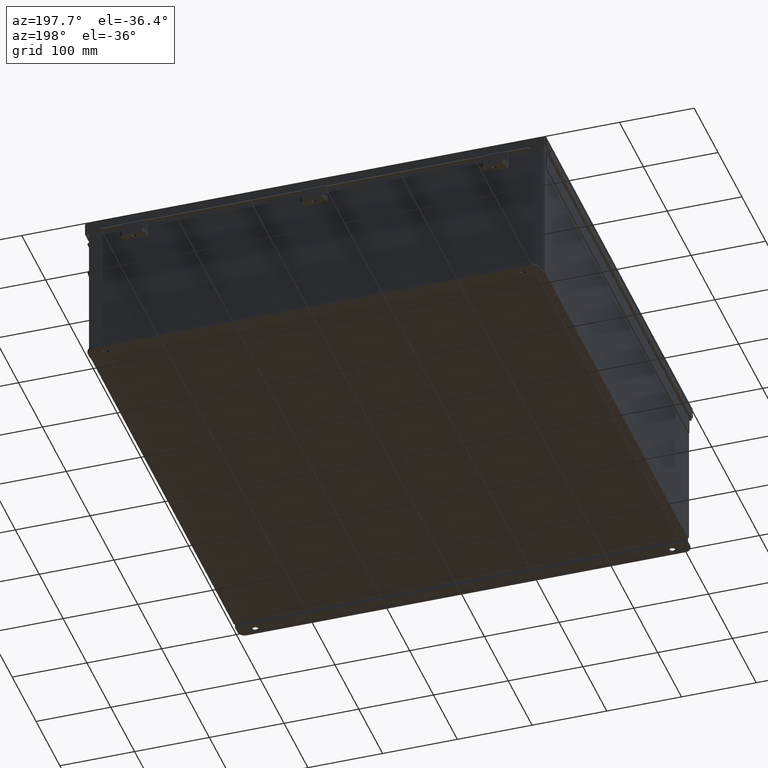
[diagram: clean part render]
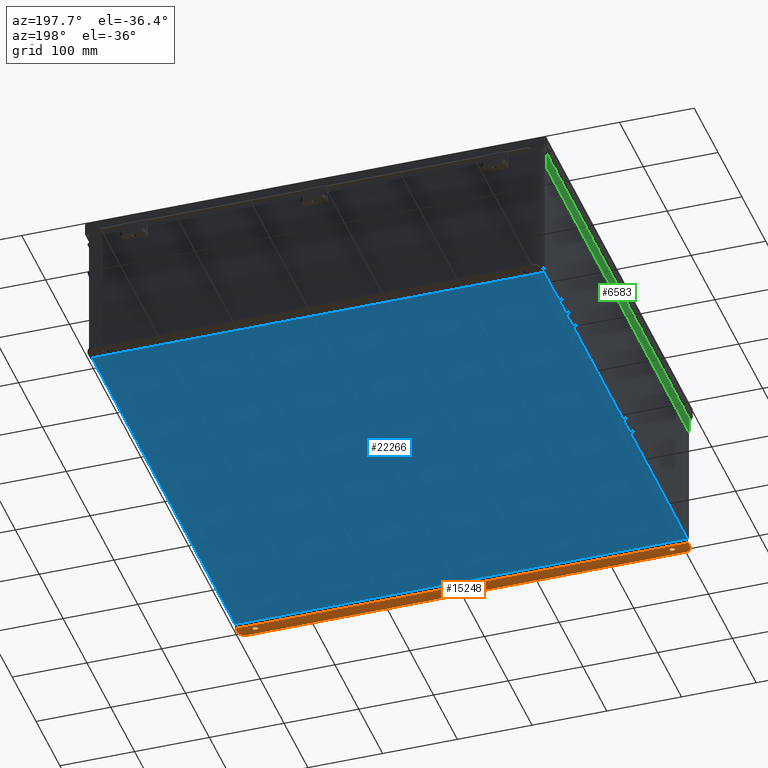
[diagram: same view with three faces highlighted in distinct colors, each labeled with its STEP entity id]
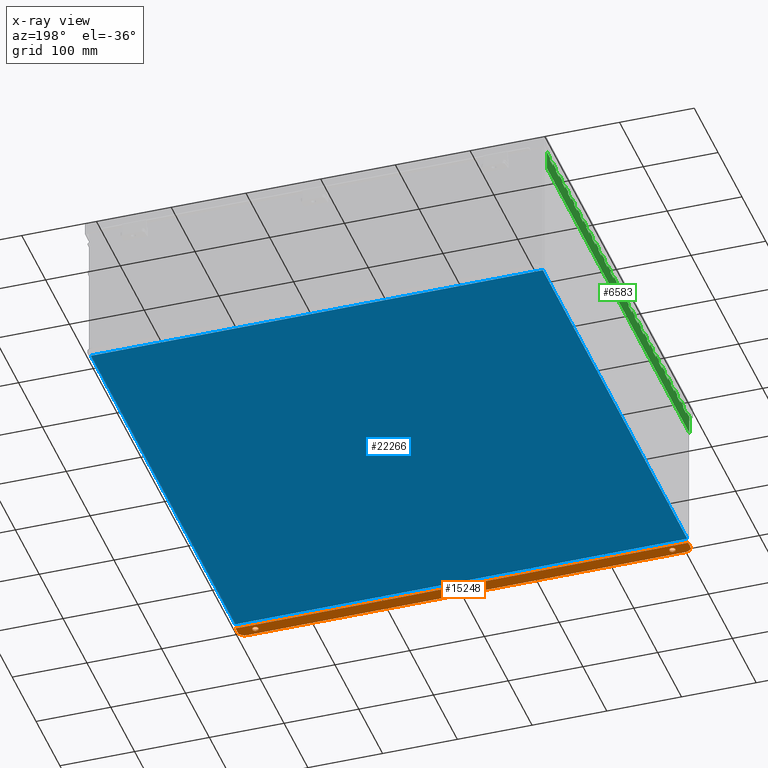
[diagram: x-ray of the same camera — body ghosted, the three highlighted faces saturated]
A machine part, auxiliary view with three faces highlighted in distinct colors.
The next image is the same camera in x-ray (body ghosted, the three faces saturated) — at least one of them is partly hidden behind the body in this view.
Their STEP definitions:

[orange] entity #15248 — the highlighted planar face has unit normal (0, -0, 1).
#114 = CARTESIAN_POINT ( 'NONE',  ( -11.92529999999999800, 0.01300000000000010700, -4.186999999999995800 ) ) ;
#421 = ORIENTED_EDGE ( 'NONE', *, *, #21510, .F. ) ;
#647 = DIRECTION ( 'NONE',  ( 0.0000000000000000000, -1.000000000000000000, 4.370956789862820400E-015 ) ) ;
#656 = CARTESIAN_POINT ( 'NONE',  ( 11.92530000000000000, 0.01300000000001759100, -4.187000000000000300 ) ) ;
#676 = DIRECTION ( 'NONE',  ( -0.0000000000000000000, -3.702694488566362300E-015, -1.000000000000000000 ) ) ;
#701 = CARTESIAN_POINT ( 'NONE',  ( -11.55029999999997900, 0.3627999999999986800, -4.186999999999996700 ) ) ;
#1108 = EDGE_LOOP ( 'NONE', ( #16764, #421 ) ) ;
#1353 = EDGE_CURVE ( 'NONE', #7873, #4765, #23464, .T. ) ;
#1584 = EDGE_CURVE ( 'NONE', #4671, #16002, #17282, .T. ) ;
#1685 = DIRECTION ( 'NONE',  ( -4.919856193148104900E-031, -1.000000000000000000, 3.702694488566362300E-015 ) ) ;
#1810 = AXIS2_PLACEMENT_3D ( 'NONE', #2595, #15637, #11939 ) ;
#1956 = EDGE_LOOP ( 'NONE', ( #16907, #6255, #20457, #21103, #11509, #23284 ) ) ;
#2152 = VECTOR ( 'NONE', #11127, 39.37007874015748100 ) ;
#2223 = LINE ( 'NONE', #11284, #2152 ) ;
#2419 = CARTESIAN_POINT ( 'NONE',  ( -11.92529999999998400, 0.3627999999999986800, -4.187000000000001200 ) ) ;
#2595 = CARTESIAN_POINT ( 'NONE',  ( -10.98779999999998000, 0.3627999999999986800, -4.187000000000001200 ) ) ;
#4068 = VERTEX_POINT ( 'NONE', #15369 ) ;
#4203 = AXIS2_PLACEMENT_3D ( 'NONE', #701, #676, #647 ) ;
#4671 = VERTEX_POINT ( 'NONE', #22788 ) ;
#4765 = VERTEX_POINT ( 'NONE', #6562 ) ;
#5235 = EDGE_CURVE ( 'NONE', #10815, #24901, #15497, .T. ) ;
#5363 = VERTEX_POINT ( 'NONE', #7698 ) ;
#5464 = EDGE_CURVE ( 'NONE', #21276, #5363, #14630, .T. ) ;
#6255 = ORIENTED_EDGE ( 'NONE', *, *, #19924, .T. ) ;
#6389 = CARTESIAN_POINT ( 'NONE',  ( 10.98780000000001800, 0.5188000000000162500, -4.186999999999996700 ) ) ;
#6562 = CARTESIAN_POINT ( 'NONE',  ( 11.55030000000001800, 0.7378000000000163300, -4.186999999999998500 ) ) ;
#6934 = EDGE_CURVE ( 'NONE', #4765, #4671, #8681, .T. ) ;
#7471 = CARTESIAN_POINT ( 'NONE',  ( -11.92530000000000000, -1.529834876451987200E-014, -4.186999999999995800 ) ) ;
#7698 = CARTESIAN_POINT ( 'NONE',  ( -10.98779999999998000, 0.5187999999999987100, -4.187000000000001200 ) ) ;
#7873 = VERTEX_POINT ( 'NONE', #20175 ) ;
#8182 = VERTEX_POINT ( 'NONE', #6389 ) ;
#8681 = CIRCLE ( 'NONE', #17228, 0.3750000000000000600 ) ;
#8685 = DIRECTION ( 'NONE',  ( 0.0000000000000000000, 1.000000000000000000, -3.502369222646490200E-015 ) ) ;
#8719 = DIRECTION ( 'NONE',  ( 0.0000000000000000000, -3.362274453740631800E-015, -1.000000000000000000 ) ) ;
#8736 = AXIS2_PLACEMENT_3D ( 'NONE', #18550, #17832, #16615 ) ;
#8759 = CARTESIAN_POINT ( 'NONE',  ( 10.98780000000001800, 0.3628000000000161700, -4.186999999999996700 ) ) ;
#9615 = DIRECTION ( 'NONE',  ( 1.000000000000000000, 4.910036603141682400E-031, 0.0000000000000000000 ) ) ;
#10059 = DIRECTION ( 'NONE',  ( -4.919856193148104900E-031, -1.000000000000000000, 3.702694488566362300E-015 ) ) ;
#10155 = AXIS2_PLACEMENT_3D ( 'NONE', #8759, #8719, #8685 ) ;
#10666 = AXIS2_PLACEMENT_3D ( 'NONE', #16556, #16520, #16490 ) ;
#10726 = PLANE ( 'NONE',  #17238 ) ;
#10815 = VERTEX_POINT ( 'NONE', #114 ) ;
#11127 = DIRECTION ( 'NONE',  ( 1.000000000000000000, 2.290800226127906500E-017, -0.0000000000000000000 ) ) ;
#11284 = CARTESIAN_POINT ( 'NONE',  ( 11.92530000000000000, 0.01300000000001759100, -4.187000000000000300 ) ) ;
#11330 = CIRCLE ( 'NONE', #4203, 0.3750000000000000600 ) ;
#11478 = CARTESIAN_POINT ( 'NONE',  ( -2.035385365534024800E-024, -1.529834876451987200E-014, -4.187000000000000300 ) ) ;
#11509 = ORIENTED_EDGE ( 'NONE', *, *, #1584, .T. ) ;
#11939 = DIRECTION ( 'NONE',  ( 0.0000000000000000000, 1.000000000000000000, -3.502369222646490200E-015 ) ) ;
#12878 = CARTESIAN_POINT ( 'NONE',  ( 11.92530000000000000, 2.185478394931410600E-015, -4.187000000000000300 ) ) ;
#13030 = CARTESIAN_POINT ( 'NONE',  ( -2.035385365534024800E-024, 0.7378000000000011200, -4.186999999999998500 ) ) ;
#14184 = DIRECTION ( 'NONE',  ( 0.0000000000000000000, 3.702694488566362300E-015, 1.000000000000000000 ) ) ;
#14270 = EDGE_CURVE ( 'NONE', #10815, #16002, #2223, .T. ) ;
#14630 = CIRCLE ( 'NONE', #1810, 0.1560000000000000600 ) ;
#15248 = ADVANCED_FACE ( 'NONE', ( #19452, #19363, #19656 ), #10726, .F. ) ;
#15369 = CARTESIAN_POINT ( 'NONE',  ( 10.98780000000001800, 0.2068000000000160800, -4.186999999999995800 ) ) ;
#15497 = LINE ( 'NONE', #7471, #15587 ) ;
#15587 = VECTOR ( 'NONE', #16709, 39.37007874015748100 ) ;
#15637 = DIRECTION ( 'NONE',  ( 0.0000000000000000000, -3.362274453740631800E-015, -1.000000000000000000 ) ) ;
#15669 = DIRECTION ( 'NONE',  ( -0.0000000000000000000, -3.702694488566362300E-015, -1.000000000000000000 ) ) ;
#16002 = VERTEX_POINT ( 'NONE', #656 ) ;
#16490 = DIRECTION ( 'NONE',  ( 0.0000000000000000000, 1.000000000000000000, -3.502369222646490200E-015 ) ) ;
#16520 = DIRECTION ( 'NONE',  ( 0.0000000000000000000, -3.362274453740631800E-015, -1.000000000000000000 ) ) ;
#16556 = CARTESIAN_POINT ( 'NONE',  ( -10.98779999999998000, 0.3627999999999986800, -4.187000000000001200 ) ) ;
#16615 = DIRECTION ( 'NONE',  ( 0.0000000000000000000, 1.000000000000000000, -3.502369222646490200E-015 ) ) ;
#16709 = DIRECTION ( 'NONE',  ( 4.919856193148104900E-031, 1.000000000000000000, -3.702694488566362300E-015 ) ) ;
#16741 = CIRCLE ( 'NONE', #10666, 0.1560000000000000600 ) ;
#16764 = ORIENTED_EDGE ( 'NONE', *, *, #17981, .F. ) ;
#16907 = ORIENTED_EDGE ( 'NONE', *, *, #5235, .T. ) ;
#16972 = VECTOR ( 'NONE', #1685, 39.37007874015748100 ) ;
#17228 = AXIS2_PLACEMENT_3D ( 'NONE', #18686, #15669, #24744 ) ;
#17238 = AXIS2_PLACEMENT_3D ( 'NONE', #11478, #14184, #10059 ) ;
#17282 = LINE ( 'NONE', #12878, #16972 ) ;
#17642 = CARTESIAN_POINT ( 'NONE',  ( -10.98779999999998000, 0.2067999999999986000, -4.187000000000000300 ) ) ;
#17832 = DIRECTION ( 'NONE',  ( 0.0000000000000000000, -3.362274453740631800E-015, -1.000000000000000000 ) ) ;
#17981 = EDGE_CURVE ( 'NONE', #8182, #4068, #23703, .T. ) ;
#18550 = CARTESIAN_POINT ( 'NONE',  ( 10.98780000000001800, 0.3628000000000161700, -4.186999999999996700 ) ) ;
#18686 = CARTESIAN_POINT ( 'NONE',  ( 11.55030000000001800, 0.3628000000000161700, -4.187000000000001200 ) ) ;
#19357 = ORIENTED_EDGE ( 'NONE', *, *, #23500, .F. ) ;
#19363 = FACE_BOUND ( 'NONE', #1108, .T. ) ;
#19452 = FACE_BOUND ( 'NONE', #21413, .T. ) ;
#19656 = FACE_OUTER_BOUND ( 'NONE', #1956, .T. ) ;
#19924 = EDGE_CURVE ( 'NONE', #24901, #7873, #11330, .T. ) ;
#20175 = CARTESIAN_POINT ( 'NONE',  ( -11.55029999999997900, 0.7377999999999989000, -4.187000000000002900 ) ) ;
#20457 = ORIENTED_EDGE ( 'NONE', *, *, #1353, .T. ) ;
#21103 = ORIENTED_EDGE ( 'NONE', *, *, #6934, .T. ) ;
#21276 = VERTEX_POINT ( 'NONE', #17642 ) ;
#21413 = EDGE_LOOP ( 'NONE', ( #19357, #23965 ) ) ;
#21510 = EDGE_CURVE ( 'NONE', #4068, #8182, #24447, .T. ) ;
#22786 = VECTOR ( 'NONE', #9615, 39.37007874015748100 ) ;
#22788 = CARTESIAN_POINT ( 'NONE',  ( 11.92530000000001800, 0.3628000000000161700, -4.186999999999996700 ) ) ;
#23284 = ORIENTED_EDGE ( 'NONE', *, *, #14270, .F. ) ;
#23464 = LINE ( 'NONE', #13030, #22786 ) ;
#23500 = EDGE_CURVE ( 'NONE', #5363, #21276, #16741, .T. ) ;
#23703 = CIRCLE ( 'NONE', #8736, 0.1560000000000000600 ) ;
#23965 = ORIENTED_EDGE ( 'NONE', *, *, #5464, .F. ) ;
#24447 = CIRCLE ( 'NONE', #10155, 0.1560000000000000600 ) ;
#24744 = DIRECTION ( 'NONE',  ( 0.0000000000000000000, -1.000000000000000000, 4.370956789862820400E-015 ) ) ;
#24901 = VERTEX_POINT ( 'NONE', #2419 ) ;

[blue] entity #22266 — the highlighted planar face has unit normal (0, 0, -1).
#2713 = CARTESIAN_POINT ( 'NONE',  ( 11.91230000000000000, 11.92529999999999800, -0.07469999999999994700 ) ) ;
#3737 = AXIS2_PLACEMENT_3D ( 'NONE', #16034, #15511, #15406 ) ;
#4070 = EDGE_CURVE ( 'NONE', #13842, #8018, #20523, .T. ) ;
#5085 = CARTESIAN_POINT ( 'NONE',  ( -11.91230000000000000, -11.92529999999999800, -0.07469999999999994700 ) ) ;
#5570 = VERTEX_POINT ( 'NONE', #7185 ) ;
#7185 = CARTESIAN_POINT ( 'NONE',  ( -11.91230000000000000, 11.92530000000000000, -0.07470000000000000300 ) ) ;
#8018 = VERTEX_POINT ( 'NONE', #15510 ) ;
#8588 = VECTOR ( 'NONE', #10262, 39.37007874015748100 ) ;
#8886 = LINE ( 'NONE', #10239, #8588 ) ;
#10239 = CARTESIAN_POINT ( 'NONE',  ( -11.91230000000000000, -11.92530000000000000, -0.07469999999999994700 ) ) ;
#10262 = DIRECTION ( 'NONE',  ( -0.0000000000000000000, 1.000000000000000000, -0.0000000000000000000 ) ) ;
#11762 = CARTESIAN_POINT ( 'NONE',  ( -12.00000000000000200, -11.92530000000000000, -0.07470000000000000300 ) ) ;
#11768 = ORIENTED_EDGE ( 'NONE', *, *, #13060, .T. ) ;
#13060 = EDGE_CURVE ( 'NONE', #13842, #5570, #8886, .T. ) ;
#13561 = ORIENTED_EDGE ( 'NONE', *, *, #4070, .F. ) ;
#13842 = VERTEX_POINT ( 'NONE', #5085 ) ;
#13889 = ORIENTED_EDGE ( 'NONE', *, *, #15496, .T. ) ;
#15406 = DIRECTION ( 'NONE',  ( -1.000000000000000000, 0.0000000000000000000, -0.0000000000000000000 ) ) ;
#15471 = EDGE_CURVE ( 'NONE', #24859, #5570, #17676, .T. ) ;
#15496 = EDGE_CURVE ( 'NONE', #24859, #8018, #17354, .T. ) ;
#15510 = CARTESIAN_POINT ( 'NONE',  ( 11.91230000000000000, -11.92530000000000000, -0.07470000000000000300 ) ) ;
#15511 = DIRECTION ( 'NONE',  ( 0.0000000000000000000, 0.0000000000000000000, -1.000000000000000000 ) ) ;
#15651 = PLANE ( 'NONE',  #3737 ) ;
#16034 = CARTESIAN_POINT ( 'NONE',  ( 0.0000000000000000000, 0.0000000000000000000, -0.07470000000000000300 ) ) ;
#16940 = ORIENTED_EDGE ( 'NONE', *, *, #15471, .F. ) ;
#17354 = LINE ( 'NONE', #17484, #17696 ) ;
#17394 = DIRECTION ( 'NONE',  ( -0.0000000000000000000, -1.000000000000000000, -0.0000000000000000000 ) ) ;
#17484 = CARTESIAN_POINT ( 'NONE',  ( 11.91230000000000000, 11.92530000000000000, -0.07469999999999994700 ) ) ;
#17653 = VECTOR ( 'NONE', #18129, 39.37007874015748100 ) ;
#17676 = LINE ( 'NONE', #18196, #17653 ) ;
#17696 = VECTOR ( 'NONE', #17394, 39.37007874015748100 ) ;
#18129 = DIRECTION ( 'NONE',  ( -1.000000000000000000, -0.0000000000000000000, -0.0000000000000000000 ) ) ;
#18196 = CARTESIAN_POINT ( 'NONE',  ( -12.00000000000000200, 11.92530000000000000, -0.07470000000000000300 ) ) ;
#20361 = VECTOR ( 'NONE', #24286, 39.37007874015748100 ) ;
#20523 = LINE ( 'NONE', #11762, #20361 ) ;
#20578 = EDGE_LOOP ( 'NONE', ( #16940, #13889, #13561, #11768 ) ) ;
#21649 = FACE_OUTER_BOUND ( 'NONE', #20578, .T. ) ;
#22266 = ADVANCED_FACE ( 'NONE', ( #21649 ), #15651, .T. ) ;
#24286 = DIRECTION ( 'NONE',  ( 1.000000000000000000, 0.0000000000000000000, 0.0000000000000000000 ) ) ;
#24859 = VERTEX_POINT ( 'NONE', #2713 ) ;

[green] entity #6583 — the highlighted planar face has unit normal (1, -0, 0).
#23 = ORIENTED_EDGE ( 'NONE', *, *, #13509, .F. ) ;
#38 = DIRECTION ( 'NONE',  ( -1.000000000000000000, 0.0000000000000000000, 0.0000000000000000000 ) ) ;
#260 = CARTESIAN_POINT ( 'NONE',  ( 0.1365000000000000100, 0.0000000000000000000, -1.707404996040164500E-017 ) ) ;
#303 = CARTESIAN_POINT ( 'NONE',  ( 0.1365000000000000100, 0.0000000000000000000, -1.707404996040164500E-017 ) ) ;
#315 = EDGE_CURVE ( 'NONE', #10664, #15254, #8787, .T. ) ;
#325 = ORIENTED_EDGE ( 'NONE', *, *, #1651, .F. ) ;
#363 = EDGE_CURVE ( 'NONE', #990, #996, #8429, .T. ) ;
#442 = VECTOR ( 'NONE', #13806, 39.37007874015748100 ) ;
#467 = LINE ( 'NONE', #13885, #442 ) ;
#544 = ORIENTED_EDGE ( 'NONE', *, *, #24215, .F. ) ;
#548 = EDGE_CURVE ( 'NONE', #19463, #6800, #2370, .T. ) ;
#566 = VECTOR ( 'NONE', #20645, 39.37007874015748100 ) ;
#631 = LINE ( 'NONE', #22241, #566 ) ;
#662 = DIRECTION ( 'NONE',  ( -1.000000000000000000, 0.0000000000000000000, 0.0000000000000000000 ) ) ;
#666 = ORIENTED_EDGE ( 'NONE', *, *, #12658, .F. ) ;
#674 = CARTESIAN_POINT ( 'NONE',  ( 0.0000000000000000000, 18.49999999999999300, 0.0000000000000000000 ) ) ;
#710 = ORIENTED_EDGE ( 'NONE', *, *, #23056, .F. ) ;
#817 = ORIENTED_EDGE ( 'NONE', *, *, #12695, .F. ) ;
#867 = VECTOR ( 'NONE', #17805, 39.37007874015748100 ) ;
#879 = CARTESIAN_POINT ( 'NONE',  ( 0.0000000000000000000, 5.499999999999992900, 0.0000000000000000000 ) ) ;
#892 = LINE ( 'NONE', #18414, #867 ) ;
#901 = ORIENTED_EDGE ( 'NONE', *, *, #10348, .T. ) ;
#929 = VECTOR ( 'NONE', #3838, 39.37007874015748100 ) ;
#968 = CARTESIAN_POINT ( 'NONE',  ( 0.1365000000000000100, 16.99999999999999300, -1.707404996040164500E-017 ) ) ;
#990 = VERTEX_POINT ( 'NONE', #10341 ) ;
#996 = VERTEX_POINT ( 'NONE', #4051 ) ;
#1009 = CARTESIAN_POINT ( 'NONE',  ( 0.2730000000000000200, 12.99999999999999300, 0.0000000000000000000 ) ) ;
#1016 = VERTEX_POINT ( 'NONE', #10991 ) ;
#1044 = VECTOR ( 'NONE', #21346, 39.37007874015748100 ) ;
#1078 = CARTESIAN_POINT ( 'NONE',  ( 0.1365000000000000100, 0.0000000000000000000, -1.707404996040164500E-017 ) ) ;
#1100 = CARTESIAN_POINT ( 'NONE',  ( 0.0000000000000000000, 4.499999999999992000, 0.0000000000000000000 ) ) ;
#1181 = CARTESIAN_POINT ( 'NONE',  ( 0.1365000000000000100, 20.49999999999999300, -1.707404996040164500E-017 ) ) ;
#1254 = DIRECTION ( 'NONE',  ( -1.000000000000000000, 0.0000000000000000000, 0.0000000000000000000 ) ) ;
#1267 = EDGE_CURVE ( 'NONE', #23395, #18600, #7262, .T. ) ;
#1289 = LINE ( 'NONE', #21466, #1044 ) ;
#1308 = CARTESIAN_POINT ( 'NONE',  ( 0.2730000000000000200, 21.99999999999999600, 0.0000000000000000000 ) ) ;
#1314 = VECTOR ( 'NONE', #21990, 39.37007874015748100 ) ;
#1315 = VECTOR ( 'NONE', #4705, 39.37007874015748100 ) ;
#1364 = VERTEX_POINT ( 'NONE', #1009 ) ;
#1380 = ORIENTED_EDGE ( 'NONE', *, *, #5052, .F. ) ;
#1429 = LINE ( 'NONE', #4903, #1315 ) ;
#1453 = EDGE_CURVE ( 'NONE', #4683, #21349, #19640, .T. ) ;
#1466 = DIRECTION ( 'NONE',  ( 0.0000000000000000000, 1.000000000000000000, 0.0000000000000000000 ) ) ;
#1469 = VERTEX_POINT ( 'NONE', #7947 ) ;
#1470 = VERTEX_POINT ( 'NONE', #9149 ) ;
#1564 = ORIENTED_EDGE ( 'NONE', *, *, #12344, .F. ) ;
#1575 = CARTESIAN_POINT ( 'NONE',  ( 0.0000000000000000000, 7.499999999999992000, 0.0000000000000000000 ) ) ;
#1622 = LINE ( 'NONE', #22868, #1314 ) ;
#1652 = ORIENTED_EDGE ( 'NONE', *, *, #23659, .T. ) ;
#1651 = EDGE_CURVE ( 'NONE', #14133, #11145, #15142, .T. ) ;
#1653 = EDGE_CURVE ( 'NONE', #15426, #4475, #14244, .T. ) ;
#1684 = DIRECTION ( 'NONE',  ( 0.0000000000000000000, 1.000000000000000000, 0.0000000000000000000 ) ) ;
#1706 = ORIENTED_EDGE ( 'NONE', *, *, #14411, .T. ) ;
#1734 = ORIENTED_EDGE ( 'NONE', *, *, #1453, .F. ) ;
#1795 = VECTOR ( 'NONE', #17803, 39.37007874015748100 ) ;
#1808 = LINE ( 'NONE', #17531, #1795 ) ;
#1842 = VECTOR ( 'NONE', #23315, 39.37007874015748100 ) ;
#1850 = CARTESIAN_POINT ( 'NONE',  ( 0.2730000000000000200, -20.00000000000000000, 0.0000000000000000000 ) ) ;
#1862 = CARTESIAN_POINT ( 'NONE',  ( 0.0000000000000000000, 5.999999999999994700, 0.0000000000000000000 ) ) ;
#1912 = LINE ( 'NONE', #23528, #1842 ) ;
#2080 = CARTESIAN_POINT ( 'NONE',  ( 0.1365000000000000100, 13.99999999999999300, -1.707404996040164500E-017 ) ) ;
#2092 = LINE ( 'NONE', #21499, #2146 ) ;
#2135 = ORIENTED_EDGE ( 'NONE', *, *, #23872, .F. ) ;
#2146 = VECTOR ( 'NONE', #21575, 39.37007874015748100 ) ;
#2193 = VECTOR ( 'NONE', #22129, 39.37007874015748100 ) ;
#2217 = DIRECTION ( 'NONE',  ( -1.000000000000000000, 0.0000000000000000000, 0.0000000000000000000 ) ) ;
#2233 = EDGE_CURVE ( 'NONE', #8903, #20463, #21089, .T. ) ;
#2249 = VERTEX_POINT ( 'NONE', #18513 ) ;
#2260 = CARTESIAN_POINT ( 'NONE',  ( 0.1365000000000000100, 8.999999999999994700, -1.707404996040164500E-017 ) ) ;
#2307 = VERTEX_POINT ( 'NONE', #5423 ) ;
#2321 = VERTEX_POINT ( 'NONE', #13571 ) ;
#2370 = LINE ( 'NONE', #20908, #11606 ) ;
#2386 = CARTESIAN_POINT ( 'NONE',  ( 0.0000000000000000000, 13.99999999999999300, 0.0000000000000000000 ) ) ;
#2468 = VECTOR ( 'NONE', #8295, 39.37007874015748100 ) ;
#2489 = LINE ( 'NONE', #22454, #2193 ) ;
#2557 = CARTESIAN_POINT ( 'NONE',  ( 0.2730000000000000200, 13.99999999999999300, 0.0000000000000000000 ) ) ;
#2574 = VECTOR ( 'NONE', #8341, 39.37007874015748100 ) ;
#2582 = ORIENTED_EDGE ( 'NONE', *, *, #5387, .F. ) ;
#2607 = LINE ( 'NONE', #9391, #2468 ) ;
#2614 = ORIENTED_EDGE ( 'NONE', *, *, #21640, .T. ) ;
#2624 = LINE ( 'NONE', #8668, #2574 ) ;
#2661 = VERTEX_POINT ( 'NONE', #8679 ) ;
#2719 = CARTESIAN_POINT ( 'NONE',  ( 0.1365000000000000100, 6.499999999999992000, -1.707404996040164500E-017 ) ) ;
#2839 = CARTESIAN_POINT ( 'NONE',  ( 0.1365000000000000100, 0.0000000000000000000, -1.707404996040164500E-017 ) ) ;
#2975 = CARTESIAN_POINT ( 'NONE',  ( 0.0000000000000000000, 6.499999999999992000, 0.0000000000000000000 ) ) ;
#3002 = DIRECTION ( 'NONE',  ( -1.000000000000000000, 0.0000000000000000000, 0.0000000000000000000 ) ) ;
#3008 = LINE ( 'NONE', #5623, #24623 ) ;
#3094 = CARTESIAN_POINT ( 'NONE',  ( 0.2730000000000000200, 1.999999999999994000, 0.0000000000000000000 ) ) ;
#3126 = CARTESIAN_POINT ( 'NONE',  ( 0.2730000000000000200, 4.999999999999993800, 0.0000000000000000000 ) ) ;
#3161 = DIRECTION ( 'NONE',  ( -1.000000000000000000, 0.0000000000000000000, 0.0000000000000000000 ) ) ;
#3264 = VERTEX_POINT ( 'NONE', #19899 ) ;
#3304 = ORIENTED_EDGE ( 'NONE', *, *, #9564, .T. ) ;
#3322 = DIRECTION ( 'NONE',  ( 0.0000000000000000000, 1.000000000000000000, 0.0000000000000000000 ) ) ;
#3344 = CARTESIAN_POINT ( 'NONE',  ( 0.2730000000000000200, -22.00000000000000000, 0.0000000000000000000 ) ) ;
#3355 = VERTEX_POINT ( 'NONE', #7075 ) ;
#3371 = LINE ( 'NONE', #879, #3399 ) ;
#3399 = VECTOR ( 'NONE', #12228, 39.37007874015748100 ) ;
#3551 = DIRECTION ( 'NONE',  ( 0.0000000000000000000, 1.000000000000000000, 0.0000000000000000000 ) ) ;
#3618 = ORIENTED_EDGE ( 'NONE', *, *, #15693, .T. ) ;
#3717 = CARTESIAN_POINT ( 'NONE',  ( 0.0000000000000000000, 8.999999999999994700, 0.0000000000000000000 ) ) ;
#3733 = EDGE_CURVE ( 'NONE', #21503, #23989, #22050, .T. ) ;
#3749 = VERTEX_POINT ( 'NONE', #8932 ) ;
#3753 = DIRECTION ( 'NONE',  ( -1.000000000000000000, 0.0000000000000000000, 0.0000000000000000000 ) ) ;
#3756 = VERTEX_POINT ( 'NONE', #18934 ) ;
#3786 = EDGE_CURVE ( 'NONE', #9673, #10319, #21645, .T. ) ;
#3838 = DIRECTION ( 'NONE',  ( 0.0000000000000000000, 1.000000000000000000, 0.0000000000000000000 ) ) ;
#3882 = VERTEX_POINT ( 'NONE', #17602 ) ;
#3896 = CARTESIAN_POINT ( 'NONE',  ( 0.1365000000000000100, 13.49999999999999100, -1.707404996040164500E-017 ) ) ;
#4001 = EDGE_CURVE ( 'NONE', #6800, #15947, #20880, .T. ) ;
#4051 = CARTESIAN_POINT ( 'NONE',  ( 0.1365000000000000100, 11.49999999999999300, -1.707404996040164500E-017 ) ) ;
#4057 = VECTOR ( 'NONE', #662, 39.37007874015748100 ) ;
#4064 = VERTEX_POINT ( 'NONE', #20276 ) ;
#4083 = VERTEX_POINT ( 'NONE', #13790 ) ;
#4106 = ORIENTED_EDGE ( 'NONE', *, *, #16710, .T. ) ;
#4107 = LINE ( 'NONE', #1100, #4057 ) ;
#4161 = ORIENTED_EDGE ( 'NONE', *, *, #24746, .F. ) ;
#4251 = LINE ( 'NONE', #674, #4316 ) ;
#4283 = ORIENTED_EDGE ( 'NONE', *, *, #11441, .F. ) ;
#4316 = VECTOR ( 'NONE', #38, 39.37007874015748100 ) ;
#4384 = ORIENTED_EDGE ( 'NONE', *, *, #15502, .F. ) ;
#4410 = ORIENTED_EDGE ( 'NONE', *, *, #11178, .F. ) ;
#4469 = VERTEX_POINT ( 'NONE', #2080 ) ;
#4475 = VERTEX_POINT ( 'NONE', #968 ) ;
#4505 = EDGE_CURVE ( 'NONE', #4475, #5911, #19033, .T. ) ;
#4596 = CARTESIAN_POINT ( 'NONE',  ( 0.1365000000000000100, 3.499999999999992900, -1.707404996040164500E-017 ) ) ;
#4620 = VECTOR ( 'NONE', #4975, 39.37007874015748100 ) ;
#4658 = VERTEX_POINT ( 'NONE', #8065 ) ;
#4664 = LINE ( 'NONE', #21477, #4776 ) ;
#4678 = EDGE_CURVE ( 'NONE', #18861, #10754, #18210, .T. ) ;
#4683 = VERTEX_POINT ( 'NONE', #18988 ) ;
#4705 = DIRECTION ( 'NONE',  ( -1.000000000000000000, 0.0000000000000000000, 0.0000000000000000000 ) ) ;
#4718 = DIRECTION ( 'NONE',  ( 0.0000000000000000000, 1.000000000000000000, 0.0000000000000000000 ) ) ;
#4764 = ORIENTED_EDGE ( 'NONE', *, *, #15424, .F. ) ;
#4776 = VECTOR ( 'NONE', #21538, 39.37007874015748100 ) ;
#4851 = LINE ( 'NONE', #19600, #4934 ) ;
#4867 = LINE ( 'NONE', #16879, #5198 ) ;
#4903 = CARTESIAN_POINT ( 'NONE',  ( 0.0000000000000000000, 20.49999999999999300, 0.0000000000000000000 ) ) ;
#4934 = VECTOR ( 'NONE', #19633, 39.37007874015748100 ) ;
#4947 = VECTOR ( 'NONE', #14847, 39.37007874015748100 ) ;
#4975 = DIRECTION ( 'NONE',  ( 0.0000000000000000000, 1.000000000000000000, 0.0000000000000000000 ) ) ;
#5052 = EDGE_CURVE ( 'NONE', #4064, #22924, #16345, .T. ) ;
#5073 = CARTESIAN_POINT ( 'NONE',  ( 0.1365000000000000100, 14.49999999999999300, -1.707404996040164500E-017 ) ) ;
#5105 = DIRECTION ( 'NONE',  ( 0.0000000000000000000, 1.000000000000000000, 0.0000000000000000000 ) ) ;
#5111 = ORIENTED_EDGE ( 'NONE', *, *, #2233, .F. ) ;
#5135 = CARTESIAN_POINT ( 'NONE',  ( 0.2730000000000000200, -10.00000000000000000, 0.0000000000000000000 ) ) ;
#5185 = CARTESIAN_POINT ( 'NONE',  ( 0.2730000000000000200, 7.999999999999993800, 0.0000000000000000000 ) ) ;
#5195 = CARTESIAN_POINT ( 'NONE',  ( 0.2730000000000000200, 17.49999999999999300, 0.0000000000000000000 ) ) ;
#5198 = VECTOR ( 'NONE', #13312, 39.37007874015748100 ) ;
#5215 = LINE ( 'NONE', #15287, #4947 ) ;
#5248 = DIRECTION ( 'NONE',  ( -1.000000000000000000, 0.0000000000000000000, 0.0000000000000000000 ) ) ;
#5293 = VERTEX_POINT ( 'NONE', #11352 ) ;
#5318 = VERTEX_POINT ( 'NONE', #13293 ) ;
#5338 = ORIENTED_EDGE ( 'NONE', *, *, #14522, .F. ) ;
#5357 = ORIENTED_EDGE ( 'NONE', *, *, #21260, .F. ) ;
#5387 = EDGE_CURVE ( 'NONE', #2249, #13022, #15116, .T. ) ;
#5423 = CARTESIAN_POINT ( 'NONE',  ( 0.1365000000000000100, 1.999999999999994000, -1.707404996040164500E-017 ) ) ;
#5453 = LINE ( 'NONE', #19054, #5557 ) ;
#5511 = CARTESIAN_POINT ( 'NONE',  ( 0.2730000000000000200, -2.000000000000000000, 0.0000000000000000000 ) ) ;
#5531 = ORIENTED_EDGE ( 'NONE', *, *, #20677, .T. ) ;
#5546 = CARTESIAN_POINT ( 'NONE',  ( 0.0000000000000000000, 18.99999999999999300, 0.0000000000000000000 ) ) ;
#5557 = VECTOR ( 'NONE', #19319, 39.37007874015748100 ) ;
#5603 = VERTEX_POINT ( 'NONE', #6709 ) ;
#5607 = EDGE_CURVE ( 'NONE', #6008, #8013, #14045, .T. ) ;
#5623 = CARTESIAN_POINT ( 'NONE',  ( 0.0000000000000000000, 10.49999999999999300, 0.0000000000000000000 ) ) ;
#5791 = CARTESIAN_POINT ( 'NONE',  ( 0.1365000000000000100, 0.0000000000000000000, -1.707404996040164500E-017 ) ) ;
#5901 = ORIENTED_EDGE ( 'NONE', *, *, #14766, .T. ) ;
#5911 = VERTEX_POINT ( 'NONE', #21958 ) ;
#5918 = CARTESIAN_POINT ( 'NONE',  ( 0.0000000000000000000, 21.99999999999999600, 0.0000000000000000000 ) ) ;
#5952 = CARTESIAN_POINT ( 'NONE',  ( 0.1365000000000000100, 0.0000000000000000000, -1.707404996040164500E-017 ) ) ;
#5967 = ORIENTED_EDGE ( 'NONE', *, *, #11915, .F. ) ;
#5969 = VERTEX_POINT ( 'NONE', #11098 ) ;
#5996 = VERTEX_POINT ( 'NONE', #22461 ) ;
#6008 = VERTEX_POINT ( 'NONE', #12616 ) ;
#6043 = DIRECTION ( 'NONE',  ( 0.0000000000000000000, 1.000000000000000000, 0.0000000000000000000 ) ) ;
#6140 = LINE ( 'NONE', #10249, #6162 ) ;
#6162 = VECTOR ( 'NONE', #8311, 39.37007874015748100 ) ;
#6169 = CARTESIAN_POINT ( 'NONE',  ( 0.0000000000000000000, 8.499999999999992900, 0.0000000000000000000 ) ) ;
#6196 = EDGE_CURVE ( 'NONE', #2307, #20720, #11599, .T. ) ;
#6224 = EDGE_CURVE ( 'NONE', #3756, #8659, #11276, .T. ) ;
#6453 = VECTOR ( 'NONE', #20828, 39.37007874015748100 ) ;
#6487 = CARTESIAN_POINT ( 'NONE',  ( 0.2730000000000000200, 0.4999999999999930100, 0.0000000000000000000 ) ) ;
#6498 = ORIENTED_EDGE ( 'NONE', *, *, #8412, .T. ) ;
#6546 = LINE ( 'NONE', #21079, #6453 ) ;
#6583 = ADVANCED_FACE ( 'NONE', ( #9979 ), #11697, .F. ) ;
#6594 = CARTESIAN_POINT ( 'NONE',  ( 0.0000000000000000000, 12.99999999999999300, 0.0000000000000000000 ) ) ;
#6614 = EDGE_CURVE ( 'NONE', #20107, #10319, #10029, .T. ) ;
#6629 = CARTESIAN_POINT ( 'NONE',  ( 0.0000000000000000000, 19.49999999999999300, 0.0000000000000000000 ) ) ;
#6653 = DIRECTION ( 'NONE',  ( -1.000000000000000000, 0.0000000000000000000, 0.0000000000000000000 ) ) ;
#6671 = CARTESIAN_POINT ( 'NONE',  ( 0.0000000000000000000, 9.499999999999992900, 0.0000000000000000000 ) ) ;
#6678 = CARTESIAN_POINT ( 'NONE',  ( 0.1365000000000000100, 19.49999999999999300, -1.707404996040164500E-017 ) ) ;
#6709 = CARTESIAN_POINT ( 'NONE',  ( 0.1365000000000000100, 0.9999999999999947800, -1.707404996040164500E-017 ) ) ;
#6736 = DIRECTION ( 'NONE',  ( -1.000000000000000000, 0.0000000000000000000, 0.0000000000000000000 ) ) ;
#6774 = VECTOR ( 'NONE', #17993, 39.37007874015748100 ) ;
#6800 = VERTEX_POINT ( 'NONE', #17397 ) ;
#6807 = DIRECTION ( 'NONE',  ( -1.000000000000000000, 0.0000000000000000000, 0.0000000000000000000 ) ) ;
#6838 = CARTESIAN_POINT ( 'NONE',  ( 0.0000000000000000000, 21.49999999999999300, 0.0000000000000000000 ) ) ;
#6879 = DIRECTION ( 'NONE',  ( 0.0000000000000000000, 0.0000000000000000000, -1.000000000000000000 ) ) ;
#6880 = EDGE_CURVE ( 'NONE', #11515, #5969, #8803, .T. ) ;
#6892 = LINE ( 'NONE', #6671, #7208 ) ;
#6894 = CARTESIAN_POINT ( 'NONE',  ( 0.0000000000000000000, 10.99999999999999500, 0.0000000000000000000 ) ) ;
#6901 = LINE ( 'NONE', #1862, #7133 ) ;
#7006 = ORIENTED_EDGE ( 'NONE', *, *, #4678, .F. ) ;
#7058 = CARTESIAN_POINT ( 'NONE',  ( 0.2730000000000000200, 2.999999999999993300, 0.0000000000000000000 ) ) ;
#7065 = LINE ( 'NONE', #19970, #6774 ) ;
#7075 = CARTESIAN_POINT ( 'NONE',  ( 0.2730000000000000200, 15.99999999999999500, 0.0000000000000000000 ) ) ;
#7109 = LINE ( 'NONE', #7179, #7164 ) ;
#7133 = VECTOR ( 'NONE', #3161, 39.37007874015748100 ) ;
#7148 = EDGE_CURVE ( 'NONE', #7193, #2307, #7645, .T. ) ;
#7164 = VECTOR ( 'NONE', #7322, 39.37007874015748100 ) ;
#7179 = CARTESIAN_POINT ( 'NONE',  ( 0.2730000000000000200, -14.00000000000000000, 0.0000000000000000000 ) ) ;
#7186 = ORIENTED_EDGE ( 'NONE', *, *, #16901, .F. ) ;
#7193 = VERTEX_POINT ( 'NONE', #3094 ) ;
#7208 = VECTOR ( 'NONE', #7889, 39.37007874015748100 ) ;
#7250 = CARTESIAN_POINT ( 'NONE',  ( 0.1365000000000000100, 0.0000000000000000000, -1.707404996040164500E-017 ) ) ;
#7262 = LINE ( 'NONE', #7250, #929 ) ;
#7322 = DIRECTION ( 'NONE',  ( 0.0000000000000000000, 1.000000000000000000, 0.0000000000000000000 ) ) ;
#7360 = VECTOR ( 'NONE', #11869, 39.37007874015748100 ) ;
#7364 = DIRECTION ( 'NONE',  ( -1.000000000000000000, 0.0000000000000000000, 0.0000000000000000000 ) ) ;
#7390 = VERTEX_POINT ( 'NONE', #16671 ) ;
#7391 = DIRECTION ( 'NONE',  ( -1.000000000000000000, 0.0000000000000000000, 0.0000000000000000000 ) ) ;
#7392 = CARTESIAN_POINT ( 'NONE',  ( 0.2730000000000000200, 17.99999999999999300, 0.0000000000000000000 ) ) ;
#7472 = ORIENTED_EDGE ( 'NONE', *, *, #19645, .T. ) ;
#7480 = CARTESIAN_POINT ( 'NONE',  ( 0.0000000000000000000, 11.49999999999999300, 0.0000000000000000000 ) ) ;
#7518 = EDGE_CURVE ( 'NONE', #21038, #16024, #6140, .T. ) ;
#7603 = VECTOR ( 'NONE', #15131, 39.37007874015748100 ) ;
#7612 = LINE ( 'NONE', #13746, #7360 ) ;
#7645 = LINE ( 'NONE', #16418, #7603 ) ;
#7723 = CARTESIAN_POINT ( 'NONE',  ( 0.1365000000000000100, 0.0000000000000000000, -1.707404996040164500E-017 ) ) ;
#7735 = VERTEX_POINT ( 'NONE', #23403 ) ;
#7754 = CARTESIAN_POINT ( 'NONE',  ( 0.1365000000000000100, 0.0000000000000000000, -1.707404996040164500E-017 ) ) ;
#7830 = CARTESIAN_POINT ( 'NONE',  ( 0.0000000000000000000, 2.499999999999991600, 0.0000000000000000000 ) ) ;
#7853 = EDGE_CURVE ( 'NONE', #21705, #2321, #4851, .T. ) ;
#7889 = DIRECTION ( 'NONE',  ( -1.000000000000000000, 0.0000000000000000000, 0.0000000000000000000 ) ) ;
#7892 = EDGE_CURVE ( 'NONE', #18999, #23029, #4664, .T. ) ;
#7893 = CARTESIAN_POINT ( 'NONE',  ( 0.0000000000000000000, 19.99999999999999300, 0.0000000000000000000 ) ) ;
#7925 = VERTEX_POINT ( 'NONE', #22480 ) ;
#7945 = DIRECTION ( 'NONE',  ( 0.0000000000000000000, 1.000000000000000000, 0.0000000000000000000 ) ) ;
#7947 = CARTESIAN_POINT ( 'NONE',  ( 0.2730000000000000200, 6.499999999999992000, 0.0000000000000000000 ) ) ;
#7993 = EDGE_CURVE ( 'NONE', #23525, #22276, #4251, .T. ) ;
#8007 = ORIENTED_EDGE ( 'NONE', *, *, #3733, .F. ) ;
#8009 = ORIENTED_EDGE ( 'NONE', *, *, #24416, .T. ) ;
#8013 = VERTEX_POINT ( 'NONE', #15537 ) ;
#8016 = CARTESIAN_POINT ( 'NONE',  ( 0.0000000000000000000, 14.99999999999999500, 0.0000000000000000000 ) ) ;
#8027 = CARTESIAN_POINT ( 'NONE',  ( 0.1365000000000000100, 23.50000000000000000, -1.707404996040164500E-017 ) ) ;
#8065 = CARTESIAN_POINT ( 'NONE',  ( 0.2730000000000000200, 8.499999999999992900, 0.0000000000000000000 ) ) ;
#8087 = DIRECTION ( 'NONE',  ( -1.000000000000000000, 0.0000000000000000000, 0.0000000000000000000 ) ) ;
#8126 = VERTEX_POINT ( 'NONE', #2557 ) ;
#8220 = ORIENTED_EDGE ( 'NONE', *, *, #7518, .F. ) ;
#8266 = EDGE_CURVE ( 'NONE', #21583, #23541, #2624, .T. ) ;
#8295 = DIRECTION ( 'NONE',  ( 0.0000000000000000000, 1.000000000000000000, 0.0000000000000000000 ) ) ;
#8311 = DIRECTION ( 'NONE',  ( 0.0000000000000000000, 1.000000000000000000, 0.0000000000000000000 ) ) ;
#8332 = CARTESIAN_POINT ( 'NONE',  ( 0.0000000000000000000, 16.99999999999999300, 0.0000000000000000000 ) ) ;
#8341 = DIRECTION ( 'NONE',  ( -1.000000000000000000, 0.0000000000000000000, 0.0000000000000000000 ) ) ;
#8342 = DIRECTION ( 'NONE',  ( -1.000000000000000000, 0.0000000000000000000, 0.0000000000000000000 ) ) ;
#8352 = ORIENTED_EDGE ( 'NONE', *, *, #11709, .F. ) ;
#8363 = CARTESIAN_POINT ( 'NONE',  ( 0.2730000000000000200, 14.99999999999999500, 0.0000000000000000000 ) ) ;
#8375 = CARTESIAN_POINT ( 'NONE',  ( 1.136499999999999800, 23.50000000000000000, 0.0000000000000000000 ) ) ;
#8412 = EDGE_CURVE ( 'NONE', #7390, #18529, #1808, .T. ) ;
#8429 = LINE ( 'NONE', #22405, #4620 ) ;
#8458 = CARTESIAN_POINT ( 'NONE',  ( 0.1365000000000000100, 22.99999999999999300, -1.707404996040164500E-017 ) ) ;
#8482 = VECTOR ( 'NONE', #9718, 39.37007874015748100 ) ;
#8535 = VERTEX_POINT ( 'NONE', #4596 ) ;
#8659 = VERTEX_POINT ( 'NONE', #12508 ) ;
#8668 = CARTESIAN_POINT ( 'NONE',  ( 0.0000000000000000000, 17.99999999999999300, 0.0000000000000000000 ) ) ;
#8679 = CARTESIAN_POINT ( 'NONE',  ( 0.2730000000000000200, 5.499999999999992900, 0.0000000000000000000 ) ) ;
#8714 = ORIENTED_EDGE ( 'NONE', *, *, #8266, .F. ) ;
#8735 = EDGE_CURVE ( 'NONE', #13840, #5911, #467, .T. ) ;
#8760 = LINE ( 'NONE', #10955, #8482 ) ;
#8781 = VECTOR ( 'NONE', #13029, 39.37007874015748100 ) ;
#8787 = LINE ( 'NONE', #22889, #21461 ) ;
#8803 = LINE ( 'NONE', #7754, #8781 ) ;
#8903 = VERTEX_POINT ( 'NONE', #18805 ) ;
#8932 = CARTESIAN_POINT ( 'NONE',  ( 0.1365000000000000100, 8.499999999999992900, -1.707404996040164500E-017 ) ) ;
#8993 = CARTESIAN_POINT ( 'NONE',  ( 0.1365000000000000100, 6.999999999999993800, -1.707404996040164500E-017 ) ) ;
#9149 = CARTESIAN_POINT ( 'NONE',  ( 0.1365000000000000100, 21.49999999999999300, -1.707404996040164500E-017 ) ) ;
#9222 = DIRECTION ( 'NONE',  ( -1.000000000000000000, 0.0000000000000000000, 0.0000000000000000000 ) ) ;
#9391 = CARTESIAN_POINT ( 'NONE',  ( 0.1365000000000000100, 0.0000000000000000000, -1.707404996040164500E-017 ) ) ;
#9463 = CARTESIAN_POINT ( 'NONE',  ( 0.2730000000000000200, -11.00000000000000000, 0.0000000000000000000 ) ) ;
#9480 = VECTOR ( 'NONE', #9560, 39.37007874015748100 ) ;
#9484 = DIRECTION ( 'NONE',  ( 0.0000000000000000000, 1.000000000000000000, 0.0000000000000000000 ) ) ;
#9521 = LINE ( 'NONE', #6594, #9480 ) ;
#9522 = CARTESIAN_POINT ( 'NONE',  ( 0.0000000000000000000, 16.49999999999999300, 0.0000000000000000000 ) ) ;
#9529 = CARTESIAN_POINT ( 'NONE',  ( 0.2730000000000000200, 16.49999999999999300, 0.0000000000000000000 ) ) ;
#9560 = DIRECTION ( 'NONE',  ( -1.000000000000000000, 0.0000000000000000000, 0.0000000000000000000 ) ) ;
#9564 = EDGE_CURVE ( 'NONE', #1469, #18600, #13092, .T. ) ;
#9623 = CARTESIAN_POINT ( 'NONE',  ( 0.2730000000000000200, 11.49999999999999300, 0.0000000000000000000 ) ) ;
#9673 = VERTEX_POINT ( 'NONE', #17044 ) ;
#9718 = DIRECTION ( 'NONE',  ( 1.000000000000000000, 0.0000000000000000000, 0.0000000000000000000 ) ) ;
#9735 = EDGE_CURVE ( 'NONE', #3882, #7193, #10987, .T. ) ;
#9767 = ORIENTED_EDGE ( 'NONE', *, *, #1653, .F. ) ;
#9771 = VECTOR ( 'NONE', #23956, 39.37007874015748100 ) ;
#9885 = ORIENTED_EDGE ( 'NONE', *, *, #11402, .F. ) ;
#9979 = FACE_OUTER_BOUND ( 'NONE', #10976, .T. ) ;
#10029 = LINE ( 'NONE', #9522, #9771 ) ;
#10036 = ORIENTED_EDGE ( 'NONE', *, *, #1267, .F. ) ;
#10091 = EDGE_CURVE ( 'NONE', #13022, #19200, #4867, .T. ) ;
#10151 = EDGE_CURVE ( 'NONE', #2661, #8013, #3371, .T. ) ;
#10249 = CARTESIAN_POINT ( 'NONE',  ( 0.2730000000000000200, -11.99999999999999800, 0.0000000000000000000 ) ) ;
#10258 = ORIENTED_EDGE ( 'NONE', *, *, #18456, .F. ) ;
#10268 = ORIENTED_EDGE ( 'NONE', *, *, #6224, .F. ) ;
#10297 = VECTOR ( 'NONE', #11483, 39.37007874015748100 ) ;
#10302 = LINE ( 'NONE', #16509, #10297 ) ;
#10319 = VERTEX_POINT ( 'NONE', #16775 ) ;
#10341 = CARTESIAN_POINT ( 'NONE',  ( 0.1365000000000000100, 10.99999999999999500, -1.707404996040164500E-017 ) ) ;
#10348 = EDGE_CURVE ( 'NONE', #21038, #23273, #3008, .T. ) ;
#10376 = VERTEX_POINT ( 'NONE', #7058 ) ;
#10381 = LINE ( 'NONE', #21011, #10627 ) ;
#10390 = VECTOR ( 'NONE', #14886, 39.37007874015748100 ) ;
#10434 = LINE ( 'NONE', #16837, #10390 ) ;
#10465 = CARTESIAN_POINT ( 'NONE',  ( 0.0000000000000000000, 14.49999999999999300, 0.0000000000000000000 ) ) ;
#10482 = EDGE_CURVE ( 'NONE', #19204, #19266, #24080, .T. ) ;
#10519 = CARTESIAN_POINT ( 'NONE',  ( 0.1365000000000000100, 18.99999999999999300, -1.707404996040164500E-017 ) ) ;
#10562 = CARTESIAN_POINT ( 'NONE',  ( 0.2730000000000000200, -21.00000000000000000, 0.0000000000000000000 ) ) ;
#10627 = VECTOR ( 'NONE', #20935, 39.37007874015748100 ) ;
#10664 = VERTEX_POINT ( 'NONE', #16905 ) ;
#10683 = VECTOR ( 'NONE', #19961, 39.37007874015748100 ) ;
#10686 = ORIENTED_EDGE ( 'NONE', *, *, #14831, .F. ) ;
#10711 = ORIENTED_EDGE ( 'NONE', *, *, #17609, .F. ) ;
#10731 = ORIENTED_EDGE ( 'NONE', *, *, #22807, .F. ) ;
#10754 = VERTEX_POINT ( 'NONE', #19491 ) ;
#10835 = ORIENTED_EDGE ( 'NONE', *, *, #7148, .F. ) ;
#10849 = DIRECTION ( 'NONE',  ( -1.000000000000000000, 0.0000000000000000000, 0.0000000000000000000 ) ) ;
#10885 = ORIENTED_EDGE ( 'NONE', *, *, #11837, .T. ) ;
#10926 = VECTOR ( 'NONE', #1466, 39.37007874015748100 ) ;
#10927 = ORIENTED_EDGE ( 'NONE', *, *, #4505, .F. ) ;
#10941 = ORIENTED_EDGE ( 'NONE', *, *, #11406, .F. ) ;
#10955 = CARTESIAN_POINT ( 'NONE',  ( 0.0000000000000000000, 0.0000000000000000000, 0.0000000000000000000 ) ) ;
#10960 = CARTESIAN_POINT ( 'NONE',  ( 0.2730000000000000200, 9.499999999999992900, 0.0000000000000000000 ) ) ;
#10976 = EDGE_LOOP ( 'NONE', ( #5531, #12047, #4106, #16890, #17439, #10731, #10941, #13263, #15152, #17079, #17265, #16420, #8009, #13225, #1380, #5967, #1706, #4384, #1734, #16279, #2614, #13370, #5111, #4764, #16649, #17934, #8714, #20378, #13335, #10927, #9767, #18335, #20746, #22327, #14599, #20548, #14475, #817, #7006, #666, #12354, #22065, #13539, #13824, #6498, #7186, #21463, #14607, #5901, #2135, #8352, #544, #7472, #16140, #10258, #8220, #901, #9885, #10268, #16193, #13818, #5357, #325, #16734, #15087, #14102, #11023, #4410, #14621, #8007, #14306, #710, #3304, #10036, #14175, #23, #18027, #23466, #10686, #1564, #20831, #4283, #21890, #2582, #10885, #10711, #15016, #18907, #3618, #13635, #10835, #15076, #1652, #5338, #12991, #4161 ) ) ;
#10987 = LINE ( 'NONE', #10562, #10683 ) ;
#10991 = CARTESIAN_POINT ( 'NONE',  ( 0.2730000000000000200, 2.499999999999991600, 0.0000000000000000000 ) ) ;
#11023 = ORIENTED_EDGE ( 'NONE', *, *, #7853, .F. ) ;
#11045 = LINE ( 'NONE', #1078, #10926 ) ;
#11065 = DIRECTION ( 'NONE',  ( 0.0000000000000000000, 1.000000000000000000, 0.0000000000000000000 ) ) ;
#11098 = CARTESIAN_POINT ( 'NONE',  ( 0.1365000000000000100, 0.4999999999999930100, -1.707404996040164500E-017 ) ) ;
#11120 = CARTESIAN_POINT ( 'NONE',  ( 0.1365000000000000100, 15.49999999999999300, -1.707404996040164500E-017 ) ) ;
#11145 = VERTEX_POINT ( 'NONE', #2260 ) ;
#11178 = EDGE_CURVE ( 'NONE', #5996, #21705, #18891, .T. ) ;
#11197 = CARTESIAN_POINT ( 'NONE',  ( 0.1365000000000000100, 11.99999999999999500, -1.707404996040164500E-017 ) ) ;
#11227 = VECTOR ( 'NONE', #5248, 39.37007874015748100 ) ;
#11276 = LINE ( 'NONE', #11535, #11227 ) ;
#11350 = CARTESIAN_POINT ( 'NONE',  ( 0.1365000000000000100, 0.0000000000000000000, -1.707404996040164500E-017 ) ) ;
#11352 = CARTESIAN_POINT ( 'NONE',  ( 0.1365000000000000100, 1.499999999999992200, -1.707404996040164500E-017 ) ) ;
#11402 = EDGE_CURVE ( 'NONE', #8659, #23273, #17539, .T. ) ;
#11406 = EDGE_CURVE ( 'NONE', #23029, #17764, #17514, .T. ) ;
#11421 = CARTESIAN_POINT ( 'NONE',  ( 0.2730000000000000200, 5.999999999999994700, 0.0000000000000000000 ) ) ;
#11441 = EDGE_CURVE ( 'NONE', #19200, #11636, #17628, .T. ) ;
#11482 = VECTOR ( 'NONE', #13342, 39.37007874015748100 ) ;
#11483 = DIRECTION ( 'NONE',  ( 0.0000000000000000000, 1.000000000000000000, 0.0000000000000000000 ) ) ;
#11515 = VERTEX_POINT ( 'NONE', #15690 ) ;
#11535 = CARTESIAN_POINT ( 'NONE',  ( 0.0000000000000000000, 9.999999999999994700, 0.0000000000000000000 ) ) ;
#11537 = EDGE_CURVE ( 'NONE', #18999, #19266, #16815, .T. ) ;
#11590 = EDGE_CURVE ( 'NONE', #21014, #18625, #16589, .T. ) ;
#11599 = LINE ( 'NONE', #303, #11482 ) ;
#11606 = VECTOR ( 'NONE', #14016, 39.37007874015748100 ) ;
#11636 = VERTEX_POINT ( 'NONE', #19073 ) ;
#11655 = DIRECTION ( 'NONE',  ( -1.000000000000000000, 0.0000000000000000000, 0.0000000000000000000 ) ) ;
#11678 = CARTESIAN_POINT ( 'NONE',  ( 0.2730000000000000200, 3.999999999999994700, 0.0000000000000000000 ) ) ;
#11697 = PLANE ( 'NONE',  #16428 ) ;
#11703 = VERTEX_POINT ( 'NONE', #20294 ) ;
#11709 = EDGE_CURVE ( 'NONE', #17066, #15621, #16036, .T. ) ;
#11837 = EDGE_CURVE ( 'NONE', #2249, #8535, #15025, .T. ) ;
#11838 = EDGE_CURVE ( 'NONE', #4658, #3749, #15137, .T. ) ;
#11869 = DIRECTION ( 'NONE',  ( 0.0000000000000000000, 1.000000000000000000, 0.0000000000000000000 ) ) ;
#11894 = CARTESIAN_POINT ( 'NONE',  ( 0.1365000000000000100, 7.499999999999992000, -1.707404996040164500E-017 ) ) ;
#11915 = EDGE_CURVE ( 'NONE', #5318, #4064, #14596, .T. ) ;
#11920 = VECTOR ( 'NONE', #6043, 39.37007874015748100 ) ;
#11938 = LINE ( 'NONE', #5952, #11920 ) ;
#11948 = CARTESIAN_POINT ( 'NONE',  ( 1.136500000000000100, 0.0000000000000000000, 0.0000000000000000000 ) ) ;
#12038 = LINE ( 'NONE', #3344, #12077 ) ;
#12047 = ORIENTED_EDGE ( 'NONE', *, *, #6880, .F. ) ;
#12077 = VECTOR ( 'NONE', #3322, 39.37007874015748100 ) ;
#12122 = EDGE_CURVE ( 'NONE', #1016, #10376, #13107, .T. ) ;
#12161 = VECTOR ( 'NONE', #13145, 39.37007874015748100 ) ;
#12228 = DIRECTION ( 'NONE',  ( -1.000000000000000000, 0.0000000000000000000, 0.0000000000000000000 ) ) ;
#12231 = DIRECTION ( 'NONE',  ( -1.000000000000000000, 0.0000000000000000000, 0.0000000000000000000 ) ) ;
#12344 = EDGE_CURVE ( 'NONE', #3264, #24793, #12427, .T. ) ;
#12354 = ORIENTED_EDGE ( 'NONE', *, *, #19567, .T. ) ;
#12369 = CARTESIAN_POINT ( 'NONE',  ( 0.2730000000000000200, 11.99999999999999500, 0.0000000000000000000 ) ) ;
#12427 = LINE ( 'NONE', #13223, #12161 ) ;
#12435 = CARTESIAN_POINT ( 'NONE',  ( 0.1365000000000000100, 12.99999999999999300, -1.707404996040164500E-017 ) ) ;
#12460 = VECTOR ( 'NONE', #5105, 39.37007874015748100 ) ;
#12508 = CARTESIAN_POINT ( 'NONE',  ( 0.1365000000000000100, 9.999999999999994700, -1.707404996040164500E-017 ) ) ;
#12523 = LINE ( 'NONE', #5135, #12460 ) ;
#12574 = CARTESIAN_POINT ( 'NONE',  ( 0.1365000000000000100, 12.49999999999999100, -1.707404996040164500E-017 ) ) ;
#12616 = CARTESIAN_POINT ( 'NONE',  ( 0.1365000000000000100, 4.999999999999993800, -1.707404996040164500E-017 ) ) ;
#12658 = EDGE_CURVE ( 'NONE', #4083, #18861, #10434, .T. ) ;
#12667 = VERTEX_POINT ( 'NONE', #14720 ) ;
#12690 = LINE ( 'NONE', #7480, #12713 ) ;
#12695 = EDGE_CURVE ( 'NONE', #10754, #15254, #10302, .T. ) ;
#12713 = VECTOR ( 'NONE', #7391, 39.37007874015748100 ) ;
#12966 = DIRECTION ( 'NONE',  ( 0.0000000000000000000, 1.000000000000000000, 0.0000000000000000000 ) ) ;
#12986 = LINE ( 'NONE', #6838, #13114 ) ;
#12991 = ORIENTED_EDGE ( 'NONE', *, *, #21062, .F. ) ;
#13022 = VERTEX_POINT ( 'NONE', #11678 ) ;
#13025 = CARTESIAN_POINT ( 'NONE',  ( 0.1365000000000000100, 0.0000000000000000000, -1.707404996040164500E-017 ) ) ;
#13029 = DIRECTION ( 'NONE',  ( 0.0000000000000000000, 1.000000000000000000, 0.0000000000000000000 ) ) ;
#13080 = VECTOR ( 'NONE', #9222, 39.37007874015748100 ) ;
#13088 = VECTOR ( 'NONE', #1684, 39.37007874015748100 ) ;
#13092 = LINE ( 'NONE', #2975, #13632 ) ;
#13103 = LINE ( 'NONE', #10465, #13080 ) ;
#13107 = LINE ( 'NONE', #1850, #13088 ) ;
#13114 = VECTOR ( 'NONE', #6807, 39.37007874015748100 ) ;
#13145 = DIRECTION ( 'NONE',  ( 0.0000000000000000000, 1.000000000000000000, 0.0000000000000000000 ) ) ;
#13165 = VERTEX_POINT ( 'NONE', #6487 ) ;
#13223 = CARTESIAN_POINT ( 'NONE',  ( 0.2730000000000000200, -18.00000000000000000, 0.0000000000000000000 ) ) ;
#13225 = ORIENTED_EDGE ( 'NONE', *, *, #19923, .F. ) ;
#13247 = DIRECTION ( 'NONE',  ( 0.0000000000000000000, 1.000000000000000000, 0.0000000000000000000 ) ) ;
#13263 = ORIENTED_EDGE ( 'NONE', *, *, #7892, .F. ) ;
#13293 = CARTESIAN_POINT ( 'NONE',  ( 0.2730000000000000200, 20.49999999999999300, 0.0000000000000000000 ) ) ;
#13298 = DIRECTION ( 'NONE',  ( -1.000000000000000000, 0.0000000000000000000, 0.0000000000000000000 ) ) ;
#13312 = DIRECTION ( 'NONE',  ( -1.000000000000000000, 0.0000000000000000000, 0.0000000000000000000 ) ) ;
#13335 = ORIENTED_EDGE ( 'NONE', *, *, #8735, .T. ) ;
#13342 = DIRECTION ( 'NONE',  ( 0.0000000000000000000, 1.000000000000000000, 0.0000000000000000000 ) ) ;
#13355 = DIRECTION ( 'NONE',  ( -1.000000000000000000, 0.0000000000000000000, 0.0000000000000000000 ) ) ;
#13370 = ORIENTED_EDGE ( 'NONE', *, *, #19720, .F. ) ;
#13371 = EDGE_CURVE ( 'NONE', #4658, #14133, #7109, .T. ) ;
#13429 = EDGE_CURVE ( 'NONE', #17431, #23395, #6901, .T. ) ;
#13509 = EDGE_CURVE ( 'NONE', #2661, #17431, #6546, .T. ) ;
#13539 = ORIENTED_EDGE ( 'NONE', *, *, #17879, .F. ) ;
#13571 = CARTESIAN_POINT ( 'NONE',  ( 0.1365000000000000100, 7.999999999999993800, -1.707404996040164500E-017 ) ) ;
#13632 = VECTOR ( 'NONE', #12231, 39.37007874015748100 ) ;
#13635 = ORIENTED_EDGE ( 'NONE', *, *, #6196, .F. ) ;
#13662 = VECTOR ( 'NONE', #1254, 39.37007874015748100 ) ;
#13677 = LINE ( 'NONE', #5918, #13770 ) ;
#13746 = CARTESIAN_POINT ( 'NONE',  ( 0.1365000000000000100, 0.0000000000000000000, -1.707404996040164500E-017 ) ) ;
#13770 = VECTOR ( 'NONE', #3002, 39.37007874015748100 ) ;
#13790 = CARTESIAN_POINT ( 'NONE',  ( 0.2730000000000000200, 14.49999999999999300, 0.0000000000000000000 ) ) ;
#13806 = DIRECTION ( 'NONE',  ( -1.000000000000000000, 0.0000000000000000000, 0.0000000000000000000 ) ) ;
#13818 = ORIENTED_EDGE ( 'NONE', *, *, #20515, .T. ) ;
#13824 = ORIENTED_EDGE ( 'NONE', *, *, #17567, .F. ) ;
#13840 = VERTEX_POINT ( 'NONE', #5195 ) ;
#13883 = CARTESIAN_POINT ( 'NONE',  ( 0.1365000000000000100, 0.0000000000000000000, -1.707404996040164500E-017 ) ) ;
#13885 = CARTESIAN_POINT ( 'NONE',  ( 0.0000000000000000000, 17.49999999999999300, 0.0000000000000000000 ) ) ;
#13909 = EDGE_CURVE ( 'NONE', #3264, #11636, #4107, .T. ) ;
#13932 = VECTOR ( 'NONE', #19810, 39.37007874015748100 ) ;
#13976 = DIRECTION ( 'NONE',  ( 0.0000000000000000000, 1.000000000000000000, 0.0000000000000000000 ) ) ;
#14016 = DIRECTION ( 'NONE',  ( -5.812442539711198700E-018, 1.000000000000000000, 0.0000000000000000000 ) ) ;
#14026 = LINE ( 'NONE', #9463, #14368 ) ;
#14045 = LINE ( 'NONE', #20737, #13932 ) ;
#14102 = ORIENTED_EDGE ( 'NONE', *, *, #19995, .F. ) ;
#14133 = VERTEX_POINT ( 'NONE', #23978 ) ;
#14175 = ORIENTED_EDGE ( 'NONE', *, *, #13429, .F. ) ;
#14201 = DIRECTION ( 'NONE',  ( -1.000000000000000000, 0.0000000000000000000, 0.0000000000000000000 ) ) ;
#14218 = VECTOR ( 'NONE', #3753, 39.37007874015748100 ) ;
#14233 = CARTESIAN_POINT ( 'NONE',  ( 0.0000000000000000000, 22.99999999999999300, 0.0000000000000000000 ) ) ;
#14244 = LINE ( 'NONE', #8332, #13662 ) ;
#14277 = DIRECTION ( 'NONE',  ( 0.0000000000000000000, 1.000000000000000000, 0.0000000000000000000 ) ) ;
#14306 = ORIENTED_EDGE ( 'NONE', *, *, #20710, .F. ) ;
#14358 = CARTESIAN_POINT ( 'NONE',  ( 0.2730000000000000200, -5.000000000000000000, 0.0000000000000000000 ) ) ;
#14368 = VECTOR ( 'NONE', #9484, 39.37007874015748100 ) ;
#14391 = DIRECTION ( 'NONE',  ( 0.0000000000000000000, 1.000000000000000000, 0.0000000000000000000 ) ) ;
#14411 = EDGE_CURVE ( 'NONE', #5318, #16955, #1429, .T. ) ;
#14456 = CARTESIAN_POINT ( 'NONE',  ( 0.1365000000000000100, 2.499999999999991600, -1.707404996040164500E-017 ) ) ;
#14475 = ORIENTED_EDGE ( 'NONE', *, *, #315, .T. ) ;
#14484 = DIRECTION ( 'NONE',  ( -1.000000000000000000, 0.0000000000000000000, 0.0000000000000000000 ) ) ;
#14522 = EDGE_CURVE ( 'NONE', #5603, #5293, #631, .T. ) ;
#14523 = VECTOR ( 'NONE', #7945, 39.37007874015748100 ) ;
#14596 = LINE ( 'NONE', #5511, #14523 ) ;
#14599 = ORIENTED_EDGE ( 'NONE', *, *, #23423, .F. ) ;
#14607 = ORIENTED_EDGE ( 'NONE', *, *, #24603, .F. ) ;
#14621 = ORIENTED_EDGE ( 'NONE', *, *, #18062, .T. ) ;
#14673 = CARTESIAN_POINT ( 'NONE',  ( 0.1365000000000000100, 18.49999999999999300, -1.707404996040164500E-017 ) ) ;
#14720 = CARTESIAN_POINT ( 'NONE',  ( 0.2730000000000000200, 19.49999999999999300, 0.0000000000000000000 ) ) ;
#14731 = VERTEX_POINT ( 'NONE', #21944 ) ;
#14736 = CARTESIAN_POINT ( 'NONE',  ( 0.0000000000000000000, 3.499999999999992900, 0.0000000000000000000 ) ) ;
#14766 = EDGE_CURVE ( 'NONE', #14731, #20073, #23481, .T. ) ;
#14831 = EDGE_CURVE ( 'NONE', #24793, #6008, #23111, .T. ) ;
#14847 = DIRECTION ( 'NONE',  ( -1.000000000000000000, 0.0000000000000000000, 0.0000000000000000000 ) ) ;
#14886 = DIRECTION ( 'NONE',  ( 0.0000000000000000000, 1.000000000000000000, 0.0000000000000000000 ) ) ;
#14949 = VECTOR ( 'NONE', #13247, 39.37007874015748100 ) ;
#15016 = ORIENTED_EDGE ( 'NONE', *, *, #23601, .F. ) ;
#15020 = VECTOR ( 'NONE', #21511, 39.37007874015748100 ) ;
#15025 = LINE ( 'NONE', #14736, #15020 ) ;
#15070 = VECTOR ( 'NONE', #19866, 39.37007874015748100 ) ;
#15076 = ORIENTED_EDGE ( 'NONE', *, *, #9735, .F. ) ;
#15087 = ORIENTED_EDGE ( 'NONE', *, *, #11838, .T. ) ;
#15116 = LINE ( 'NONE', #21198, #14949 ) ;
#15131 = DIRECTION ( 'NONE',  ( -1.000000000000000000, 0.0000000000000000000, 0.0000000000000000000 ) ) ;
#15137 = LINE ( 'NONE', #6169, #15070 ) ;
#15142 = LINE ( 'NONE', #3717, #14218 ) ;
#15152 = ORIENTED_EDGE ( 'NONE', *, *, #11537, .T. ) ;
#15251 = DIRECTION ( 'NONE',  ( -1.000000000000000000, 0.0000000000000000000, 0.0000000000000000000 ) ) ;
#15254 = VERTEX_POINT ( 'NONE', #11120 ) ;
#15257 = CARTESIAN_POINT ( 'NONE',  ( 0.0000000000000000000, 1.499999999999992200, 0.0000000000000000000 ) ) ;
#15275 = LINE ( 'NONE', #5791, #15435 ) ;
#15287 = CARTESIAN_POINT ( 'NONE',  ( 0.0000000000000000000, 6.999999999999993800, 0.0000000000000000000 ) ) ;
#15296 = VECTOR ( 'NONE', #12966, 39.37007874015748100 ) ;
#15331 = VECTOR ( 'NONE', #13355, 39.37007874015748100 ) ;
#15392 = DIRECTION ( 'NONE',  ( -1.000000000000000000, 0.0000000000000000000, -0.0000000000000000000 ) ) ;
#15404 = LINE ( 'NONE', #13025, #15296 ) ;
#15424 = EDGE_CURVE ( 'NONE', #23525, #8903, #17951, .T. ) ;
#15426 = VERTEX_POINT ( 'NONE', #22892 ) ;
#15433 = LINE ( 'NONE', #19392, #15478 ) ;
#15435 = VECTOR ( 'NONE', #4718, 39.37007874015748100 ) ;
#15478 = VECTOR ( 'NONE', #19140, 39.37007874015748100 ) ;
#15480 = CARTESIAN_POINT ( 'NONE',  ( 0.1365000000000000100, 19.99999999999999300, -1.707404996040164500E-017 ) ) ;
#15502 = EDGE_CURVE ( 'NONE', #21349, #16955, #17376, .T. ) ;
#15528 = VECTOR ( 'NONE', #8087, 39.37007874015748100 ) ;
#15537 = CARTESIAN_POINT ( 'NONE',  ( 0.1365000000000000100, 5.499999999999992900, -1.707404996040164500E-017 ) ) ;
#15621 = VERTEX_POINT ( 'NONE', #11197 ) ;
#15690 = CARTESIAN_POINT ( 'NONE',  ( 0.1364999999999999000, 0.0000000000000000000, 0.0000000000000000000 ) ) ;
#15693 = EDGE_CURVE ( 'NONE', #1016, #20720, #15829, .T. ) ;
#15726 = EDGE_CURVE ( 'NONE', #23541, #22276, #15275, .T. ) ;
#15795 = CARTESIAN_POINT ( 'NONE',  ( 0.1365000000000000100, 2.999999999999993300, -1.707404996040164500E-017 ) ) ;
#15808 = VECTOR ( 'NONE', #21636, 39.37007874015748100 ) ;
#15826 = DIRECTION ( 'NONE',  ( -1.000000000000000000, 0.0000000000000000000, 0.0000000000000000000 ) ) ;
#15829 = LINE ( 'NONE', #7830, #15528 ) ;
#15878 = CARTESIAN_POINT ( 'NONE',  ( 0.0000000000000000000, 2.999999999999993300, 0.0000000000000000000 ) ) ;
#15947 = VERTEX_POINT ( 'NONE', #8027 ) ;
#15960 = EDGE_CURVE ( 'NONE', #18625, #19204, #13677, .T. ) ;
#15979 = CARTESIAN_POINT ( 'NONE',  ( 0.1365000000000000100, 22.49999999999999300, -1.707404996040164500E-017 ) ) ;
#16024 = VERTEX_POINT ( 'NONE', #22857 ) ;
#16036 = LINE ( 'NONE', #21252, #15808 ) ;
#16140 = ORIENTED_EDGE ( 'NONE', *, *, #363, .F. ) ;
#16153 = VECTOR ( 'NONE', #15251, 39.37007874015748100 ) ;
#16193 = ORIENTED_EDGE ( 'NONE', *, *, #21093, .F. ) ;
#16202 = DIRECTION ( 'NONE',  ( -1.000000000000000000, -0.0000000000000000000, -0.0000000000000000000 ) ) ;
#16279 = ORIENTED_EDGE ( 'NONE', *, *, #19185, .F. ) ;
#16303 = CARTESIAN_POINT ( 'NONE',  ( 0.1365000000000000100, 17.99999999999999300, -1.707404996040164500E-017 ) ) ;
#16345 = LINE ( 'NONE', #24101, #16478 ) ;
#16353 = LINE ( 'NONE', #15257, #16153 ) ;
#16387 = CARTESIAN_POINT ( 'NONE',  ( 0.2730000000000000200, 18.49999999999999300, 0.0000000000000000000 ) ) ;
#16418 = CARTESIAN_POINT ( 'NONE',  ( 0.0000000000000000000, 1.999999999999994000, 0.0000000000000000000 ) ) ;
#16419 = VECTOR ( 'NONE', #15826, 39.37007874015748100 ) ;
#16420 = ORIENTED_EDGE ( 'NONE', *, *, #11590, .F. ) ;
#16423 = CARTESIAN_POINT ( 'NONE',  ( 0.0000000000000000000, 23.50000000000000000, 0.0000000000000000000 ) ) ;
#16428 = AXIS2_PLACEMENT_3D ( 'NONE', #8375, #6879, #15392 ) ;
#16460 = VECTOR ( 'NONE', #17789, 39.37007874015748100 ) ;
#16478 = VECTOR ( 'NONE', #7364, 39.37007874015748100 ) ;
#16509 = CARTESIAN_POINT ( 'NONE',  ( 0.1365000000000000100, 0.0000000000000000000, -1.707404996040164500E-017 ) ) ;
#16575 = LINE ( 'NONE', #15878, #16419 ) ;
#16589 = LINE ( 'NONE', #18250, #16460 ) ;
#16649 = ORIENTED_EDGE ( 'NONE', *, *, #7993, .T. ) ;
#16671 = CARTESIAN_POINT ( 'NONE',  ( 0.2730000000000000200, 13.49999999999999100, 0.0000000000000000000 ) ) ;
#16687 = VECTOR ( 'NONE', #10849, 39.37007874015748100 ) ;
#16710 = EDGE_CURVE ( 'NONE', #11515, #19463, #8760, .T. ) ;
#16734 = ORIENTED_EDGE ( 'NONE', *, *, #13371, .F. ) ;
#16775 = CARTESIAN_POINT ( 'NONE',  ( 0.1365000000000000100, 16.49999999999999300, -1.707404996040164500E-017 ) ) ;
#16815 = LINE ( 'NONE', #17153, #16687 ) ;
#16837 = CARTESIAN_POINT ( 'NONE',  ( 0.2730000000000000200, -8.000000000000000000, 0.0000000000000000000 ) ) ;
#16879 = CARTESIAN_POINT ( 'NONE',  ( 0.0000000000000000000, 3.999999999999994700, 0.0000000000000000000 ) ) ;
#16890 = ORIENTED_EDGE ( 'NONE', *, *, #548, .T. ) ;
#16901 = EDGE_CURVE ( 'NONE', #20402, #18529, #7612, .T. ) ;
#16905 = CARTESIAN_POINT ( 'NONE',  ( 0.2730000000000000200, 15.49999999999999300, 0.0000000000000000000 ) ) ;
#16942 = EDGE_CURVE ( 'NONE', #10664, #3355, #7065, .T. ) ;
#16955 = VERTEX_POINT ( 'NONE', #1181 ) ;
#17019 = VECTOR ( 'NONE', #17410, 39.37007874015748100 ) ;
#17044 = CARTESIAN_POINT ( 'NONE',  ( 0.1365000000000000100, 15.99999999999999500, -1.707404996040164500E-017 ) ) ;
#17047 = LINE ( 'NONE', #17635, #17019 ) ;
#17066 = VERTEX_POINT ( 'NONE', #12369 ) ;
#17079 = ORIENTED_EDGE ( 'NONE', *, *, #10482, .F. ) ;
#17142 = VECTOR ( 'NONE', #14391, 39.37007874015748100 ) ;
#17153 = CARTESIAN_POINT ( 'NONE',  ( 0.0000000000000000000, 22.49999999999999300, 0.0000000000000000000 ) ) ;
#17209 = DIRECTION ( 'NONE',  ( 0.0000000000000000000, 1.000000000000000000, 0.0000000000000000000 ) ) ;
#17265 = ORIENTED_EDGE ( 'NONE', *, *, #15960, .F. ) ;
#17294 = VECTOR ( 'NONE', #17209, 39.37007874015748100 ) ;
#17376 = LINE ( 'NONE', #19059, #17294 ) ;
#17378 = VECTOR ( 'NONE', #14484, 39.37007874015748100 ) ;
#17397 = CARTESIAN_POINT ( 'NONE',  ( 1.136500000000000100, 23.50000000000000000, 0.0000000000000000000 ) ) ;
#17410 = DIRECTION ( 'NONE',  ( -1.000000000000000000, 0.0000000000000000000, 0.0000000000000000000 ) ) ;
#17431 = VERTEX_POINT ( 'NONE', #11421 ) ;
#17439 = ORIENTED_EDGE ( 'NONE', *, *, #4001, .T. ) ;
#17445 = VERTEX_POINT ( 'NONE', #9623 ) ;
#17486 = EDGE_CURVE ( 'NONE', #4469, #24617, #2607, .T. ) ;
#17489 = VECTOR ( 'NONE', #13976, 39.37007874015748100 ) ;
#17514 = LINE ( 'NONE', #14233, #17378 ) ;
#17531 = CARTESIAN_POINT ( 'NONE',  ( 0.0000000000000000000, 13.49999999999999100, 0.0000000000000000000 ) ) ;
#17539 = LINE ( 'NONE', #11350, #17489 ) ;
#17567 = EDGE_CURVE ( 'NONE', #7390, #8126, #1912, .T. ) ;
#17586 = DIRECTION ( 'NONE',  ( -1.000000000000000000, 0.0000000000000000000, 0.0000000000000000000 ) ) ;
#17600 = EDGE_CURVE ( 'NONE', #20107, #15426, #1622, .T. ) ;
#17602 = CARTESIAN_POINT ( 'NONE',  ( 0.2730000000000000200, 1.499999999999992200, 0.0000000000000000000 ) ) ;
#17609 = EDGE_CURVE ( 'NONE', #23611, #8535, #1289, .T. ) ;
#17628 = LINE ( 'NONE', #13883, #17142 ) ;
#17635 = CARTESIAN_POINT ( 'NONE',  ( 0.0000000000000000000, 15.99999999999999500, 0.0000000000000000000 ) ) ;
#17764 = VERTEX_POINT ( 'NONE', #8458 ) ;
#17785 = CARTESIAN_POINT ( 'NONE',  ( 0.1365000000000000100, 5.999999999999994700, -1.707404996040164500E-017 ) ) ;
#17789 = DIRECTION ( 'NONE',  ( 0.0000000000000000000, 1.000000000000000000, 0.0000000000000000000 ) ) ;
#17803 = DIRECTION ( 'NONE',  ( -1.000000000000000000, 0.0000000000000000000, 0.0000000000000000000 ) ) ;
#17805 = DIRECTION ( 'NONE',  ( 0.0000000000000000000, 1.000000000000000000, 0.0000000000000000000 ) ) ;
#17879 = EDGE_CURVE ( 'NONE', #8126, #4469, #24120, .T. ) ;
#17900 = CARTESIAN_POINT ( 'NONE',  ( 0.0000000000000000000, 4.999999999999993800, 0.0000000000000000000 ) ) ;
#17928 = VECTOR ( 'NONE', #20683, 39.37007874015748100 ) ;
#17934 = ORIENTED_EDGE ( 'NONE', *, *, #15726, .F. ) ;
#17951 = LINE ( 'NONE', #21313, #17928 ) ;
#17993 = DIRECTION ( 'NONE',  ( 0.0000000000000000000, 1.000000000000000000, 0.0000000000000000000 ) ) ;
#18027 = ORIENTED_EDGE ( 'NONE', *, *, #10151, .T. ) ;
#18062 = EDGE_CURVE ( 'NONE', #5996, #23989, #22800, .T. ) ;
#18064 = VECTOR ( 'NONE', #13298, 39.37007874015748100 ) ;
#18188 = CARTESIAN_POINT ( 'NONE',  ( 0.1365000000000000100, 3.999999999999994700, -1.707404996040164500E-017 ) ) ;
#18210 = LINE ( 'NONE', #8016, #18064 ) ;
#18240 = CARTESIAN_POINT ( 'NONE',  ( 0.1365000000000000100, 21.99999999999999600, -1.707404996040164500E-017 ) ) ;
#18250 = CARTESIAN_POINT ( 'NONE',  ( 0.2730000000000000200, -1.000000000000000000, 0.0000000000000000000 ) ) ;
#18335 = ORIENTED_EDGE ( 'NONE', *, *, #17600, .F. ) ;
#18345 = EDGE_CURVE ( 'NONE', #13840, #21583, #20866, .T. ) ;
#18414 = CARTESIAN_POINT ( 'NONE',  ( 0.1365000000000000100, 0.0000000000000000000, -1.707404996040164500E-017 ) ) ;
#18456 = EDGE_CURVE ( 'NONE', #16024, #990, #19980, .T. ) ;
#18513 = CARTESIAN_POINT ( 'NONE',  ( 0.2730000000000000200, 3.499999999999992900, 0.0000000000000000000 ) ) ;
#18529 = VERTEX_POINT ( 'NONE', #3896 ) ;
#18600 = VERTEX_POINT ( 'NONE', #2719 ) ;
#18625 = VERTEX_POINT ( 'NONE', #1308 ) ;
#18688 = VECTOR ( 'NONE', #21277, 39.37007874015748100 ) ;
#18712 = LINE ( 'NONE', #21300, #18688 ) ;
#18805 = CARTESIAN_POINT ( 'NONE',  ( 0.2730000000000000200, 18.99999999999999300, 0.0000000000000000000 ) ) ;
#18855 = VECTOR ( 'NONE', #24384, 39.37007874015748100 ) ;
#18861 = VERTEX_POINT ( 'NONE', #8363 ) ;
#18891 = LINE ( 'NONE', #24874, #18855 ) ;
#18907 = ORIENTED_EDGE ( 'NONE', *, *, #12122, .F. ) ;
#18934 = CARTESIAN_POINT ( 'NONE',  ( 0.2730000000000000200, 9.999999999999994700, 0.0000000000000000000 ) ) ;
#18970 = VECTOR ( 'NONE', #23173, 39.37007874015748100 ) ;
#18988 = CARTESIAN_POINT ( 'NONE',  ( 0.2730000000000000200, 19.99999999999999300, 0.0000000000000000000 ) ) ;
#18999 = VERTEX_POINT ( 'NONE', #24661 ) ;
#19033 = LINE ( 'NONE', #260, #18970 ) ;
#19054 = CARTESIAN_POINT ( 'NONE',  ( 0.0000000000000000000, 0.4999999999999930100, 0.0000000000000000000 ) ) ;
#19059 = CARTESIAN_POINT ( 'NONE',  ( 0.1365000000000000100, 0.0000000000000000000, -1.707404996040164500E-017 ) ) ;
#19073 = CARTESIAN_POINT ( 'NONE',  ( 0.1365000000000000100, 4.499999999999992000, -1.707404996040164500E-017 ) ) ;
#19140 = DIRECTION ( 'NONE',  ( 0.0000000000000000000, 1.000000000000000000, 0.0000000000000000000 ) ) ;
#19184 = CARTESIAN_POINT ( 'NONE',  ( 0.1365000000000000100, 10.49999999999999300, -1.707404996040164500E-017 ) ) ;
#19185 = EDGE_CURVE ( 'NONE', #12667, #4683, #15433, .T. ) ;
#19200 = VERTEX_POINT ( 'NONE', #18188 ) ;
#19204 = VERTEX_POINT ( 'NONE', #18240 ) ;
#19266 = VERTEX_POINT ( 'NONE', #15979 ) ;
#19319 = DIRECTION ( 'NONE',  ( -1.000000000000000000, 0.0000000000000000000, 0.0000000000000000000 ) ) ;
#19350 = VECTOR ( 'NONE', #14201, 39.37007874015748100 ) ;
#19392 = CARTESIAN_POINT ( 'NONE',  ( 0.2730000000000000200, -2.999999999999999600, 0.0000000000000000000 ) ) ;
#19463 = VERTEX_POINT ( 'NONE', #11948 ) ;
#19491 = CARTESIAN_POINT ( 'NONE',  ( 0.1365000000000000100, 14.99999999999999500, -1.707404996040164500E-017 ) ) ;
#19500 = VERTEX_POINT ( 'NONE', #10960 ) ;
#19567 = EDGE_CURVE ( 'NONE', #4083, #24617, #13103, .T. ) ;
#19579 = DIRECTION ( 'NONE',  ( -1.000000000000000000, 0.0000000000000000000, 0.0000000000000000000 ) ) ;
#19580 = VECTOR ( 'NONE', #6653, 39.37007874015748100 ) ;
#19600 = CARTESIAN_POINT ( 'NONE',  ( 0.0000000000000000000, 7.999999999999993800, 0.0000000000000000000 ) ) ;
#19633 = DIRECTION ( 'NONE',  ( -1.000000000000000000, 0.0000000000000000000, 0.0000000000000000000 ) ) ;
#19640 = LINE ( 'NONE', #7893, #19350 ) ;
#19645 = EDGE_CURVE ( 'NONE', #17445, #996, #12690, .T. ) ;
#19649 = VECTOR ( 'NONE', #24730, 39.37007874015748100 ) ;
#19718 = LINE ( 'NONE', #24605, #19649 ) ;
#19720 = EDGE_CURVE ( 'NONE', #20463, #22590, #11938, .T. ) ;
#19810 = DIRECTION ( 'NONE',  ( 0.0000000000000000000, 1.000000000000000000, 0.0000000000000000000 ) ) ;
#19835 = CARTESIAN_POINT ( 'NONE',  ( 0.0000000000000000000, 12.49999999999999100, 0.0000000000000000000 ) ) ;
#19866 = DIRECTION ( 'NONE',  ( -1.000000000000000000, 0.0000000000000000000, 0.0000000000000000000 ) ) ;
#19899 = CARTESIAN_POINT ( 'NONE',  ( 0.2730000000000000200, 4.499999999999992000, 0.0000000000000000000 ) ) ;
#19923 = EDGE_CURVE ( 'NONE', #22924, #1470, #11045, .T. ) ;
#19961 = DIRECTION ( 'NONE',  ( 0.0000000000000000000, 1.000000000000000000, 0.0000000000000000000 ) ) ;
#19970 = CARTESIAN_POINT ( 'NONE',  ( 0.2730000000000000200, -7.000000000000000000, 0.0000000000000000000 ) ) ;
#19980 = LINE ( 'NONE', #6894, #19580 ) ;
#19995 = EDGE_CURVE ( 'NONE', #2321, #3749, #10381, .T. ) ;
#20073 = VERTEX_POINT ( 'NONE', #12574 ) ;
#20107 = VERTEX_POINT ( 'NONE', #9529 ) ;
#20130 = EDGE_CURVE ( 'NONE', #1364, #20402, #9521, .T. ) ;
#20276 = CARTESIAN_POINT ( 'NONE',  ( 0.2730000000000000200, 20.99999999999999600, 0.0000000000000000000 ) ) ;
#20294 = CARTESIAN_POINT ( 'NONE',  ( 0.2730000000000000200, 0.9999999999999947800, 0.0000000000000000000 ) ) ;
#20378 = ORIENTED_EDGE ( 'NONE', *, *, #18345, .F. ) ;
#20402 = VERTEX_POINT ( 'NONE', #12435 ) ;
#20463 = VERTEX_POINT ( 'NONE', #10519 ) ;
#20515 = EDGE_CURVE ( 'NONE', #19500, #7735, #6892, .T. ) ;
#20548 = ORIENTED_EDGE ( 'NONE', *, *, #16942, .F. ) ;
#20645 = DIRECTION ( 'NONE',  ( 0.0000000000000000000, 1.000000000000000000, 0.0000000000000000000 ) ) ;
#20677 = EDGE_CURVE ( 'NONE', #13165, #5969, #5453, .T. ) ;
#20683 = DIRECTION ( 'NONE',  ( 0.0000000000000000000, 1.000000000000000000, 0.0000000000000000000 ) ) ;
#20710 = EDGE_CURVE ( 'NONE', #7925, #21503, #5215, .T. ) ;
#20720 = VERTEX_POINT ( 'NONE', #14456 ) ;
#20737 = CARTESIAN_POINT ( 'NONE',  ( 0.1365000000000000100, 0.0000000000000000000, -1.707404996040164500E-017 ) ) ;
#20746 = ORIENTED_EDGE ( 'NONE', *, *, #6614, .T. ) ;
#20783 = VECTOR ( 'NONE', #16202, 39.37007874015748100 ) ;
#20828 = DIRECTION ( 'NONE',  ( 0.0000000000000000000, 1.000000000000000000, 0.0000000000000000000 ) ) ;
#20831 = ORIENTED_EDGE ( 'NONE', *, *, #13909, .T. ) ;
#20866 = LINE ( 'NONE', #14358, #20891 ) ;
#20880 = LINE ( 'NONE', #16423, #20783 ) ;
#20891 = VECTOR ( 'NONE', #14277, 39.37007874015748100 ) ;
#20908 = CARTESIAN_POINT ( 'NONE',  ( 1.136500000000000100, 0.0000000000000000000, 0.0000000000000000000 ) ) ;
#20935 = DIRECTION ( 'NONE',  ( 0.0000000000000000000, 1.000000000000000000, 0.0000000000000000000 ) ) ;
#21011 = CARTESIAN_POINT ( 'NONE',  ( 0.1365000000000000100, 0.0000000000000000000, -1.707404996040164500E-017 ) ) ;
#21014 = VERTEX_POINT ( 'NONE', #23459 ) ;
#21038 = VERTEX_POINT ( 'NONE', #22832 ) ;
#21062 = EDGE_CURVE ( 'NONE', #11703, #5603, #2489, .T. ) ;
#21079 = CARTESIAN_POINT ( 'NONE',  ( 0.2730000000000000200, -17.00000000000000000, 0.0000000000000000000 ) ) ;
#21089 = LINE ( 'NONE', #5546, #15331 ) ;
#21093 = EDGE_CURVE ( 'NONE', #19500, #3756, #2092, .T. ) ;
#21198 = CARTESIAN_POINT ( 'NONE',  ( 0.2730000000000000200, -19.00000000000000000, 0.0000000000000000000 ) ) ;
#21252 = CARTESIAN_POINT ( 'NONE',  ( 0.0000000000000000000, 11.99999999999999500, 0.0000000000000000000 ) ) ;
#21260 = EDGE_CURVE ( 'NONE', #11145, #7735, #892, .T. ) ;
#21277 = DIRECTION ( 'NONE',  ( 0.0000000000000000000, 1.000000000000000000, 0.0000000000000000000 ) ) ;
#21300 = CARTESIAN_POINT ( 'NONE',  ( 0.2730000000000000200, -16.00000000000000000, 0.0000000000000000000 ) ) ;
#21313 = CARTESIAN_POINT ( 'NONE',  ( 0.2730000000000000200, -4.000000000000000000, 0.0000000000000000000 ) ) ;
#21317 = DIRECTION ( 'NONE',  ( 0.0000000000000000000, 1.000000000000000000, 0.0000000000000000000 ) ) ;
#21346 = DIRECTION ( 'NONE',  ( 0.0000000000000000000, 1.000000000000000000, 0.0000000000000000000 ) ) ;
#21349 = VERTEX_POINT ( 'NONE', #15480 ) ;
#21461 = VECTOR ( 'NONE', #11655, 39.37007874015748100 ) ;
#21463 = ORIENTED_EDGE ( 'NONE', *, *, #20130, .F. ) ;
#21466 = CARTESIAN_POINT ( 'NONE',  ( 0.1365000000000000100, 0.0000000000000000000, -1.707404996040164500E-017 ) ) ;
#21477 = CARTESIAN_POINT ( 'NONE',  ( 0.2730000000000000200, 0.0000000000000000000, 0.0000000000000000000 ) ) ;
#21499 = CARTESIAN_POINT ( 'NONE',  ( 0.2730000000000000200, -13.00000000000000000, 0.0000000000000000000 ) ) ;
#21503 = VERTEX_POINT ( 'NONE', #8993 ) ;
#21511 = DIRECTION ( 'NONE',  ( -1.000000000000000000, 0.0000000000000000000, 0.0000000000000000000 ) ) ;
#21538 = DIRECTION ( 'NONE',  ( 0.0000000000000000000, 1.000000000000000000, 0.0000000000000000000 ) ) ;
#21575 = DIRECTION ( 'NONE',  ( 0.0000000000000000000, 1.000000000000000000, 0.0000000000000000000 ) ) ;
#21583 = VERTEX_POINT ( 'NONE', #7392 ) ;
#21636 = DIRECTION ( 'NONE',  ( -1.000000000000000000, 0.0000000000000000000, 0.0000000000000000000 ) ) ;
#21640 = EDGE_CURVE ( 'NONE', #12667, #22590, #23999, .T. ) ;
#21645 = LINE ( 'NONE', #21652, #21746 ) ;
#21652 = CARTESIAN_POINT ( 'NONE',  ( 0.1365000000000000100, 0.0000000000000000000, -1.707404996040164500E-017 ) ) ;
#21654 = CARTESIAN_POINT ( 'NONE',  ( 0.2730000000000000200, 22.99999999999999300, 0.0000000000000000000 ) ) ;
#21705 = VERTEX_POINT ( 'NONE', #5185 ) ;
#21746 = VECTOR ( 'NONE', #21317, 39.37007874015748100 ) ;
#21890 = ORIENTED_EDGE ( 'NONE', *, *, #10091, .F. ) ;
#21944 = CARTESIAN_POINT ( 'NONE',  ( 0.2730000000000000200, 12.49999999999999100, 0.0000000000000000000 ) ) ;
#21958 = CARTESIAN_POINT ( 'NONE',  ( 0.1365000000000000100, 17.49999999999999300, -1.707404996040164500E-017 ) ) ;
#21990 = DIRECTION ( 'NONE',  ( 0.0000000000000000000, 1.000000000000000000, 0.0000000000000000000 ) ) ;
#22050 = LINE ( 'NONE', #2839, #22143 ) ;
#22065 = ORIENTED_EDGE ( 'NONE', *, *, #17486, .F. ) ;
#22129 = DIRECTION ( 'NONE',  ( -1.000000000000000000, 0.0000000000000000000, 0.0000000000000000000 ) ) ;
#22143 = VECTOR ( 'NONE', #3551, 39.37007874015748100 ) ;
#22241 = CARTESIAN_POINT ( 'NONE',  ( 0.1365000000000000100, 0.0000000000000000000, -1.707404996040164500E-017 ) ) ;
#22276 = VERTEX_POINT ( 'NONE', #14673 ) ;
#22327 = ORIENTED_EDGE ( 'NONE', *, *, #3786, .F. ) ;
#22405 = CARTESIAN_POINT ( 'NONE',  ( 0.1365000000000000100, 0.0000000000000000000, -1.707404996040164500E-017 ) ) ;
#22454 = CARTESIAN_POINT ( 'NONE',  ( 0.0000000000000000000, 0.9999999999999947800, 0.0000000000000000000 ) ) ;
#22461 = CARTESIAN_POINT ( 'NONE',  ( 0.2730000000000000200, 7.499999999999992000, 0.0000000000000000000 ) ) ;
#22480 = CARTESIAN_POINT ( 'NONE',  ( 0.2730000000000000200, 6.999999999999993800, 0.0000000000000000000 ) ) ;
#22590 = VERTEX_POINT ( 'NONE', #6678 ) ;
#22720 = VECTOR ( 'NONE', #24690, 39.37007874015748100 ) ;
#22800 = LINE ( 'NONE', #1575, #22720 ) ;
#22805 = VECTOR ( 'NONE', #17586, 39.37007874015748100 ) ;
#22807 = EDGE_CURVE ( 'NONE', #17764, #15947, #19718, .T. ) ;
#22832 = CARTESIAN_POINT ( 'NONE',  ( 0.2730000000000000200, 10.49999999999999300, 0.0000000000000000000 ) ) ;
#22857 = CARTESIAN_POINT ( 'NONE',  ( 0.2730000000000000200, 10.99999999999999500, 0.0000000000000000000 ) ) ;
#22868 = CARTESIAN_POINT ( 'NONE',  ( 0.2730000000000000200, -5.999999999999999100, 0.0000000000000000000 ) ) ;
#22889 = CARTESIAN_POINT ( 'NONE',  ( 0.0000000000000000000, 15.49999999999999300, 0.0000000000000000000 ) ) ;
#22892 = CARTESIAN_POINT ( 'NONE',  ( 0.2730000000000000200, 16.99999999999999300, 0.0000000000000000000 ) ) ;
#22924 = VERTEX_POINT ( 'NONE', #22968 ) ;
#22968 = CARTESIAN_POINT ( 'NONE',  ( 0.1365000000000000100, 20.99999999999999600, -1.707404996040164500E-017 ) ) ;
#23029 = VERTEX_POINT ( 'NONE', #21654 ) ;
#23056 = EDGE_CURVE ( 'NONE', #1469, #7925, #18712, .T. ) ;
#23111 = LINE ( 'NONE', #17900, #22805 ) ;
#23173 = DIRECTION ( 'NONE',  ( 0.0000000000000000000, 1.000000000000000000, 0.0000000000000000000 ) ) ;
#23213 = VECTOR ( 'NONE', #19579, 39.37007874015748100 ) ;
#23273 = VERTEX_POINT ( 'NONE', #19184 ) ;
#23315 = DIRECTION ( 'NONE',  ( 0.0000000000000000000, 1.000000000000000000, 0.0000000000000000000 ) ) ;
#23395 = VERTEX_POINT ( 'NONE', #17785 ) ;
#23403 = CARTESIAN_POINT ( 'NONE',  ( 0.1365000000000000100, 9.499999999999992900, -1.707404996040164500E-017 ) ) ;
#23423 = EDGE_CURVE ( 'NONE', #3355, #9673, #17047, .T. ) ;
#23459 = CARTESIAN_POINT ( 'NONE',  ( 0.2730000000000000200, 21.49999999999999300, 0.0000000000000000000 ) ) ;
#23466 = ORIENTED_EDGE ( 'NONE', *, *, #5607, .F. ) ;
#23481 = LINE ( 'NONE', #19835, #23213 ) ;
#23525 = VERTEX_POINT ( 'NONE', #16387 ) ;
#23528 = CARTESIAN_POINT ( 'NONE',  ( 0.2730000000000000200, -9.000000000000000000, 0.0000000000000000000 ) ) ;
#23541 = VERTEX_POINT ( 'NONE', #16303 ) ;
#23601 = EDGE_CURVE ( 'NONE', #10376, #23611, #16575, .T. ) ;
#23611 = VERTEX_POINT ( 'NONE', #15795 ) ;
#23659 = EDGE_CURVE ( 'NONE', #3882, #5293, #16353, .T. ) ;
#23872 = EDGE_CURVE ( 'NONE', #15621, #20073, #15404, .T. ) ;
#23903 = VECTOR ( 'NONE', #6736, 39.37007874015748100 ) ;
#23956 = DIRECTION ( 'NONE',  ( -1.000000000000000000, 0.0000000000000000000, 0.0000000000000000000 ) ) ;
#23978 = CARTESIAN_POINT ( 'NONE',  ( 0.2730000000000000200, 8.999999999999994700, 0.0000000000000000000 ) ) ;
#23989 = VERTEX_POINT ( 'NONE', #11894 ) ;
#23999 = LINE ( 'NONE', #6629, #23903 ) ;
#24080 = LINE ( 'NONE', #7723, #24154 ) ;
#24101 = CARTESIAN_POINT ( 'NONE',  ( 0.0000000000000000000, 20.99999999999999600, 0.0000000000000000000 ) ) ;
#24120 = LINE ( 'NONE', #2386, #24337 ) ;
#24154 = VECTOR ( 'NONE', #11065, 39.37007874015748100 ) ;
#24215 = EDGE_CURVE ( 'NONE', #17445, #17066, #14026, .T. ) ;
#24337 = VECTOR ( 'NONE', #2217, 39.37007874015748100 ) ;
#24384 = DIRECTION ( 'NONE',  ( 0.0000000000000000000, 1.000000000000000000, 0.0000000000000000000 ) ) ;
#24416 = EDGE_CURVE ( 'NONE', #21014, #1470, #12986, .T. ) ;
#24603 = EDGE_CURVE ( 'NONE', #14731, #1364, #12523, .T. ) ;
#24605 = CARTESIAN_POINT ( 'NONE',  ( 0.1365000000000000100, 0.0000000000000000000, -1.707404996040164500E-017 ) ) ;
#24617 = VERTEX_POINT ( 'NONE', #5073 ) ;
#24623 = VECTOR ( 'NONE', #8342, 39.37007874015748100 ) ;
#24661 = CARTESIAN_POINT ( 'NONE',  ( 0.2730000000000000200, 22.49999999999999300, 0.0000000000000000000 ) ) ;
#24690 = DIRECTION ( 'NONE',  ( -1.000000000000000000, 0.0000000000000000000, 0.0000000000000000000 ) ) ;
#24730 = DIRECTION ( 'NONE',  ( 0.0000000000000000000, 1.000000000000000000, 0.0000000000000000000 ) ) ;
#24746 = EDGE_CURVE ( 'NONE', #13165, #11703, #12038, .T. ) ;
#24793 = VERTEX_POINT ( 'NONE', #3126 ) ;
#24874 = CARTESIAN_POINT ( 'NONE',  ( 0.2730000000000000200, -15.00000000000000000, 0.0000000000000000000 ) ) ;